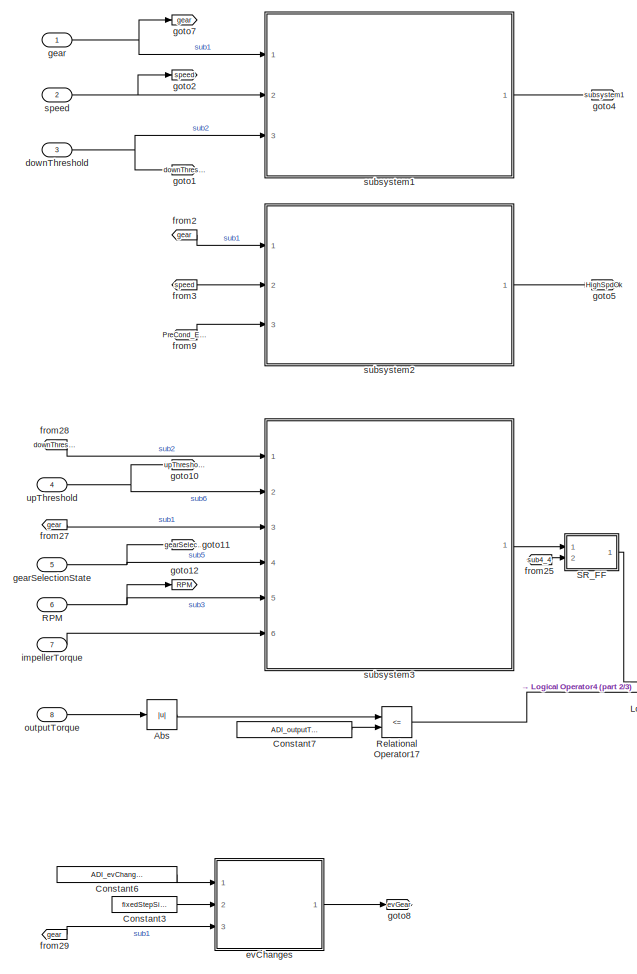
[diagram: root canvas - part 1/3, left side, full height]
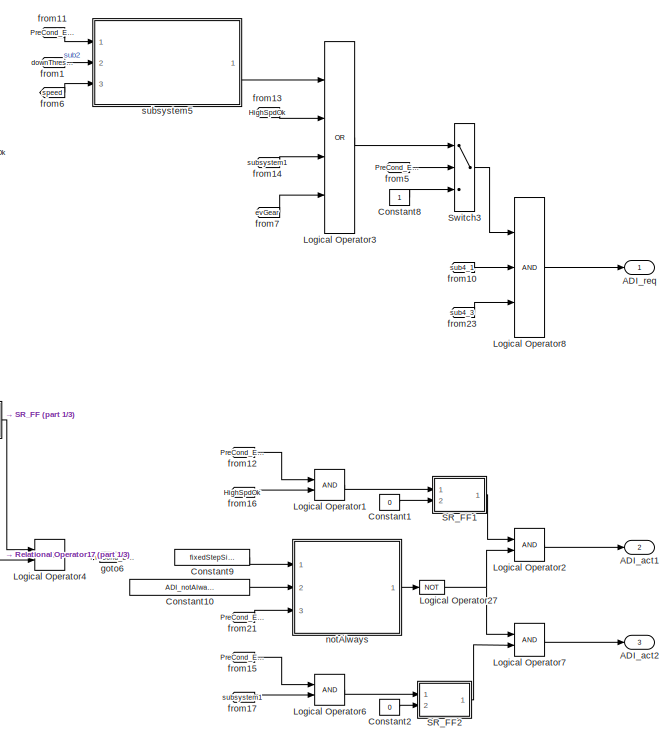
[diagram: root canvas - part 2/3, middle right region]
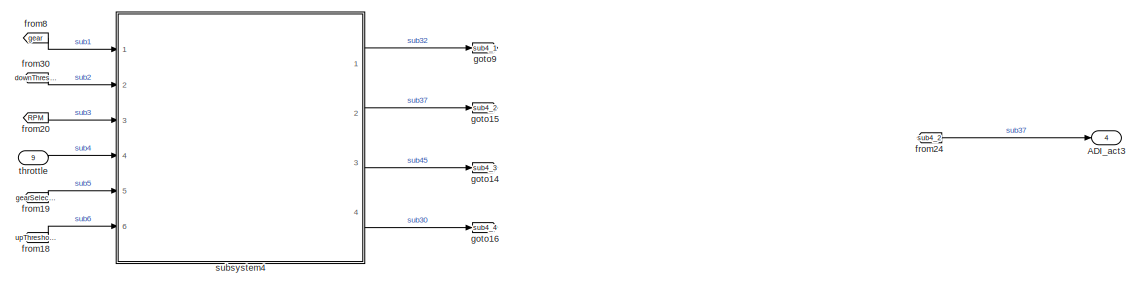
[diagram: root canvas - part 3/3, full width, bottom band]
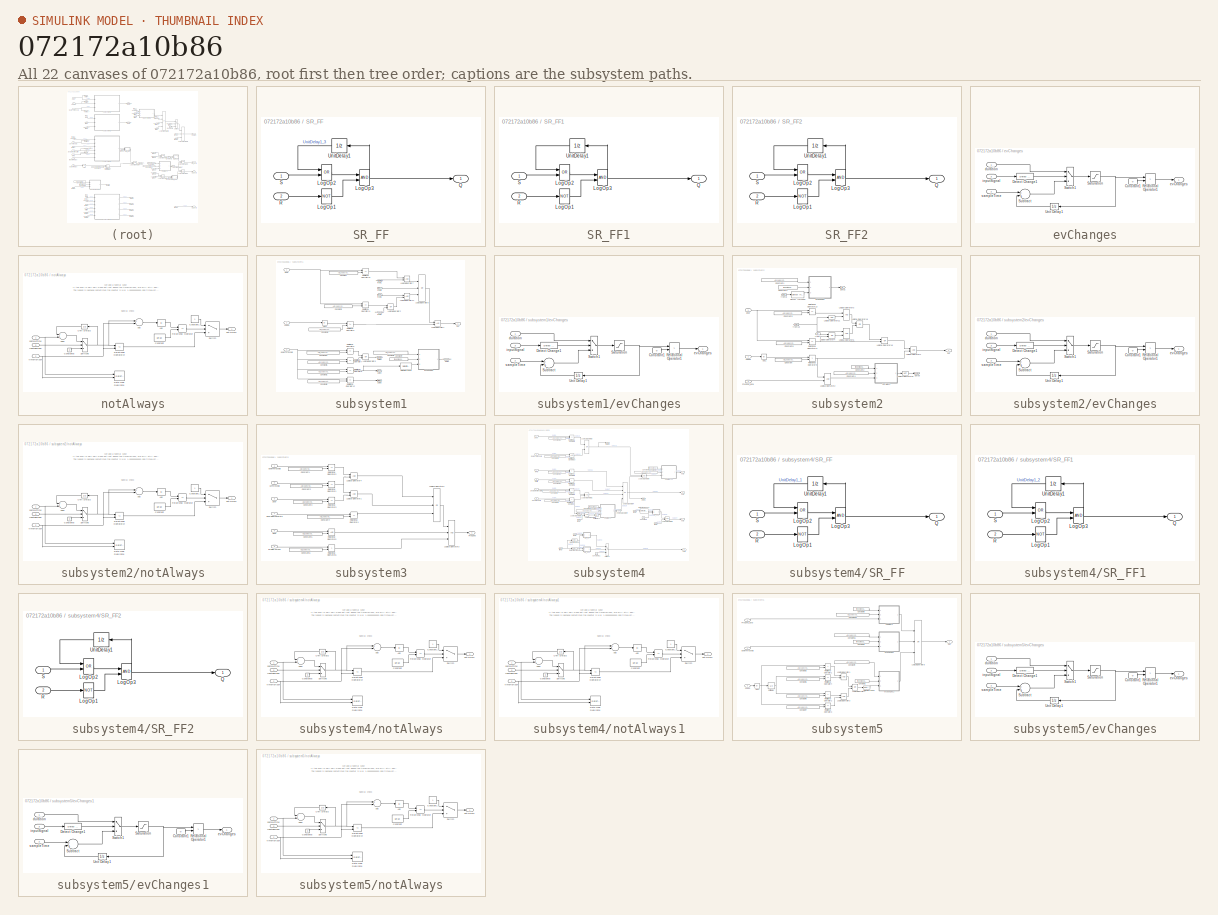
[diagram: thumbnail index - all 22 canvases of the model, root first then tree order]
MODEL slx_072172a10b86
KIND model
CONFIG AbsTol = auto
CONFIG EnableMultiTasking = off
CONFIG FixedStep = fixedStepSize
CONFIG MaxStep = auto
CONFIG MinStep = auto
CONFIG RelTol = 1e-3
CONFIG SampleTimeConstraint = Unconstrained
CONFIG Solver = FixedStepAuto
CONFIG SolverName = FixedStepAuto
CONFIG StartTime = 0.0
CONFIG StopTime = 10.0
BLOCK [Outport] ADI_act1
  IconDisplay = Port number
  OutDataTypeStr = boolean
  Port = 2
  PortDimensions = 1
  SamplingMode = Sample based
  SignalType = real
  VectorParamsAs1DForOutWhenUnconnected = off
BLOCK [Outport] ADI_act2
  IconDisplay = Port number
  OutDataTypeStr = boolean
  Port = 3
  PortDimensions = 1
  SamplingMode = Sample based
  SignalType = real
  VectorParamsAs1DForOutWhenUnconnected = off
BLOCK [Outport] ADI_act3
  IconDisplay = Port number
  OutDataTypeStr = boolean
  Port = 4
  PortDimensions = 1
  SamplingMode = Sample based
  SignalType = real
  VectorParamsAs1DForOutWhenUnconnected = off
BLOCK [Outport] ADI_req
  IconDisplay = Port number
  OutDataTypeStr = boolean
  PortDimensions = 1
  SamplingMode = Sample based
  SignalType = real
  VectorParamsAs1DForOutWhenUnconnected = off
BLOCK [Abs] Abs
  SaturateOnIntegerOverflow = off
BLOCK [Constant] Constant1
  OutDataTypeStr = boolean
  Value = 0
BLOCK [Constant] Constant10
  Value = ADI_notAlways1Horizon
BLOCK [Constant] Constant2
  OutDataTypeStr = boolean
  Value = 0
BLOCK [Constant] Constant3
  Value = fixedStepSize
BLOCK [Constant] Constant6
  Value = ADI_evChangesDuration
BLOCK [Constant] Constant7
  Value = ADI_outputTorqueBound
BLOCK [Constant] Constant8
BLOCK [Constant] Constant9
  Value = fixedStepSize
BLOCK [Logic] Logical Operator1
  AllPortsSameDT = off
  OutDataTypeStr = boolean
  Ports = [2, 1]
BLOCK [Logic] Logical Operator2
  AllPortsSameDT = off
  OutDataTypeStr = boolean
  Ports = [2, 1]
BLOCK [Logic] Logical Operator27
  AllPortsSameDT = off
  Operator = NOT
  OutDataTypeStr = boolean
  Ports = [1, 1]
BLOCK [Logic] Logical Operator3
  AllPortsSameDT = off
  Inputs = 4
  Operator = OR
  OutDataTypeStr = boolean
  Ports = [4, 1]
BLOCK [Logic] Logical Operator4
  AllPortsSameDT = off
  OutDataTypeStr = boolean
  Ports = [2, 1]
BLOCK [Logic] Logical Operator6
  AllPortsSameDT = off
  OutDataTypeStr = boolean
  Ports = [2, 1]
BLOCK [Logic] Logical Operator7
  AllPortsSameDT = off
  OutDataTypeStr = boolean
  Ports = [2, 1]
BLOCK [Logic] Logical Operator8
  AllPortsSameDT = off
  Inputs = 3
  OutDataTypeStr = boolean
  Ports = [3, 1]
BLOCK [Inport] RPM
  IconDisplay = Port number
  Port = 6
BLOCK [RelationalOperator] Relational Operator17
  InputSameDT = off
  Operator = <=
  OutDataTypeStr = boolean
  Ports = [2, 1]
BLOCK [SubSystem] SR_FF
  CopyFcn = set_param(gcbh,'LinkStatus','none');
  Ports = [2, 1]
  RequestExecContextInheritance = off
BLOCK [Logic] SR_FF/LogOp1
  Inputs = 1
  Operator = NOT
  OutDataTypeStr = boolean
  Ports = [1, 1]
  Tag = struct('inputs','1','comment',struct('text','','placement',1),'logdata',struct('maxnumvals',4096,'plotchannels',[],'loggingmode',3,'channels',1),'operator','NOT','output',struct('class','default','description','','address','','unit','-','name','$S_$B','variable','','type','Bool'),'date',733638.68643228011,'scalingvalid',0)  <repeated x6 — deduplicated; at blocks: LogOp1>
BLOCK [Logic] SR_FF/LogOp2
  Operator = OR
  OutDataTypeStr = boolean
  Ports = [2, 1]
  Tag = struct('inputs','2','comment',struct('text','','placement',1),'logdata',struct('maxnumvals',4096,'plotchannels',[],'loggingmode',3,'channels',1),'operator','AND','output',struct('class','default','description','','address','','unit','-','name','$S_$B','variable','','type','Bool'),'date',733638.68643680552,'scalingvalid',0)  <repeated x6 — deduplicated; at blocks: LogOp2>
BLOCK [Logic] SR_FF/LogOp3
  OutDataTypeStr = boolean
  Ports = [2, 1]
  Tag = struct('inputs','2','comment',struct('text','','placement',1),'logdata',struct('maxnumvals',4096,'plotchannels',[],'loggingmode',3,'channels',1),'operator','OR','output',struct('class','default','description','','address','','unit','-','name','$S_$B','variable','','type','Bool'),'date',733638.68644151615,'scalingvalid',0)  <repeated x6 — deduplicated; at blocks: LogOp3>
BLOCK [Outport] SR_FF/Q
  IconDisplay = Port number
  OutDataTypeStr = boolean
  VectorParamsAs1DForOutWhenUnconnected = off
BLOCK [Inport] SR_FF/R
  IconDisplay = Port number
  OutDataTypeStr = boolean
  Port = 2
BLOCK [Inport] SR_FF/S
  IconDisplay = Port number
  OutDataTypeStr = boolean
BLOCK [UnitDelay] SR_FF/UnitDelay1
  HasFrameUpgradeWarning = on
  SampleTime = -1
  Tag = struct('comment',struct('text','','placement',1),'logdata',struct('maxnumvals',4096,'plotchannels',[],'loggingmode',3,'channels',1),'output',struct('width',1,'name','$S_$B','unit','','type','Bool','offset',0,'max',NaN,'min',NaN,'freeze',1,'lsb',1,'arb',0,'class','default','address','','description','','autoscalingmode',1,'lowerheadroom',1,'upperheadroom',1,'headroomunit','bit','checkmin',0,'checkm...<+342ch>  <repeated x6 — deduplicated; at blocks: UnitDelay1>
BLOCK [SubSystem] SR_FF1
  CopyFcn = set_param(gcbh,'LinkStatus','none');
  Ports = [2, 1]
  RequestExecContextInheritance = off
BLOCK [Logic] SR_FF1/LogOp1
  Inputs = 1
  Operator = NOT
  OutDataTypeStr = boolean
  Ports = [1, 1]
BLOCK [Logic] SR_FF1/LogOp2
  Operator = OR
  OutDataTypeStr = boolean
  Ports = [2, 1]
BLOCK [Logic] SR_FF1/LogOp3
  OutDataTypeStr = boolean
  Ports = [2, 1]
BLOCK [Outport] SR_FF1/Q
  IconDisplay = Port number
  OutDataTypeStr = boolean
  VectorParamsAs1DForOutWhenUnconnected = off
BLOCK [Inport] SR_FF1/R
  IconDisplay = Port number
  OutDataTypeStr = boolean
  Port = 2
BLOCK [Inport] SR_FF1/S
  IconDisplay = Port number
  OutDataTypeStr = boolean
BLOCK [UnitDelay] SR_FF1/UnitDelay1
  HasFrameUpgradeWarning = on
  SampleTime = -1
BLOCK [SubSystem] SR_FF2
  CopyFcn = set_param(gcbh,'LinkStatus','none');
  Ports = [2, 1]
  RequestExecContextInheritance = off
BLOCK [Logic] SR_FF2/LogOp1
  Inputs = 1
  Operator = NOT
  OutDataTypeStr = boolean
  Ports = [1, 1]
BLOCK [Logic] SR_FF2/LogOp2
  Operator = OR
  OutDataTypeStr = boolean
  Ports = [2, 1]
BLOCK [Logic] SR_FF2/LogOp3
  OutDataTypeStr = boolean
  Ports = [2, 1]
BLOCK [Outport] SR_FF2/Q
  IconDisplay = Port number
  OutDataTypeStr = boolean
  VectorParamsAs1DForOutWhenUnconnected = off
BLOCK [Inport] SR_FF2/R
  IconDisplay = Port number
  OutDataTypeStr = boolean
  Port = 2
BLOCK [Inport] SR_FF2/S
  IconDisplay = Port number
  OutDataTypeStr = boolean
BLOCK [UnitDelay] SR_FF2/UnitDelay1
  HasFrameUpgradeWarning = on
  SampleTime = -1
BLOCK [Switch] Switch3
  Criteria = u2 ~= 0
  InputSameDT = off
  SaturateOnIntegerOverflow = off
BLOCK [Inport] downThreshold
  IconDisplay = Port number
  Port = 3
BLOCK [SubSystem] evChanges
  CopyFcn = set_param(gcbh,'LinkStatus','none');
  Ports = [3, 1]
  RequestExecContextInheritance = off
BLOCK [Constant] evChanges/Constant1
  Value = 0
BLOCK [Reference] evChanges/Detect Change1  REF=simulink/Logic and Bit
Operations/Detect
Change
  Ports = [1, 1]
  SourceBlock = simulink/Logic and Bit\nOperations/Detect\nChange
  SourceProductBaseCode = SL
  SourceProductName = Simulink
  SourceType = Detect Change
BLOCK [RelationalOperator] evChanges/Relational Operator1
  InputSameDT = off
  Operator = >
  OutDataTypeStr = boolean
  Ports = [2, 1]
BLOCK [Saturate] evChanges/Saturation
  InputPortMap = u0
  LowerLimit = 0
  Ports = [1, 1]
  UpperLimit = Inf
BLOCK [Sum] evChanges/Subtract
  InputSameDT = off
  Inputs = -+
  OutDataTypeStr = Inherit: Inherit via internal rule
  Ports = [2, 1]
  SaturateOnIntegerOverflow = off
BLOCK [Switch] evChanges/Switch1
  Criteria = u2 ~= 0
  InputSameDT = off
  SaturateOnIntegerOverflow = off
BLOCK [UnitDelay] evChanges/Unit Delay1
  HasFrameUpgradeWarning = on
  SampleTime = -1
BLOCK [Inport] evChanges/duration
  IconDisplay = Port number
BLOCK [Outport] evChanges/evChanges
  IconDisplay = Port number
  VectorParamsAs1DForOutWhenUnconnected = off
BLOCK [Inport] evChanges/inputSignal
  IconDisplay = Port number
  Port = 3
BLOCK [Inport] evChanges/sampleTime
  IconDisplay = Port number
  Port = 2
BLOCK [From] from1
  AttributesFormatString = %<GotoTag>
  GotoTag = downThreshold
BLOCK [From] from10
  AttributesFormatString = %<GotoTag>
  GotoTag = sub4_1
BLOCK [From] from11
  AttributesFormatString = %<GotoTag>
  GotoTag = PreCond_Eval
BLOCK [From] from12
  AttributesFormatString = %<GotoTag>
  GotoTag = PreCond_Eval
BLOCK [From] from13
  AttributesFormatString = %<GotoTag>
  GotoTag = HighSpdOk
BLOCK [From] from14
  AttributesFormatString = %<GotoTag>
  GotoTag = subsystem1
BLOCK [From] from15
  AttributesFormatString = %<GotoTag>
  GotoTag = PreCond_Eval
BLOCK [From] from16
  AttributesFormatString = %<GotoTag>
  GotoTag = HighSpdOk
BLOCK [From] from17
  AttributesFormatString = %<GotoTag>
  GotoTag = subsystem1
BLOCK [From] from18
  AttributesFormatString = %<GotoTag>
  GotoTag = upThreshold
BLOCK [From] from19
  AttributesFormatString = %<GotoTag>
  GotoTag = gearSelectionState
BLOCK [From] from2
  AttributesFormatString = %<GotoTag>
  GotoTag = gear
BLOCK [From] from20
  AttributesFormatString = %<GotoTag>
  GotoTag = RPM
BLOCK [From] from21
  AttributesFormatString = %<GotoTag>
  GotoTag = PreCond_Eval
BLOCK [From] from23
  AttributesFormatString = %<GotoTag>
  GotoTag = sub4_3
BLOCK [From] from24
  AttributesFormatString = %<GotoTag>
  GotoTag = sub4_2
BLOCK [From] from25
  AttributesFormatString = %<GotoTag>
  GotoTag = sub4_4
BLOCK [From] from27
  AttributesFormatString = %<GotoTag>
  GotoTag = gear
BLOCK [From] from28
  AttributesFormatString = %<GotoTag>
  GotoTag = downThreshold
BLOCK [From] from29
  AttributesFormatString = %<GotoTag>
  GotoTag = gear
BLOCK [From] from3
  AttributesFormatString = %<GotoTag>
  GotoTag = speed
BLOCK [From] from30
  AttributesFormatString = %<GotoTag>
  GotoTag = downThreshold
BLOCK [From] from5
  AttributesFormatString = %<GotoTag>
  GotoTag = PreCond_Eval
BLOCK [From] from6
  AttributesFormatString = %<GotoTag>
  GotoTag = speed
BLOCK [From] from7
  AttributesFormatString = %<GotoTag>
  GotoTag = evGear
BLOCK [From] from8
  AttributesFormatString = %<GotoTag>
  GotoTag = gear
BLOCK [From] from9
  AttributesFormatString = %<GotoTag>
  GotoTag = PreCond_Eval
BLOCK [Inport] gear
  IconDisplay = Port number
BLOCK [Inport] gearSelectionState
  IconDisplay = Port number
  Port = 5
BLOCK [Goto] goto1
  AttributesFormatString = %<GotoTag>
  GotoTag = downThreshold
BLOCK [Goto] goto10
  AttributesFormatString = %<GotoTag>
  GotoTag = upThreshold
BLOCK [Goto] goto11
  AttributesFormatString = %<GotoTag>
  GotoTag = gearSelectionState
BLOCK [Goto] goto12
  AttributesFormatString = %<GotoTag>
  GotoTag = RPM
BLOCK [Goto] goto14
  AttributesFormatString = %<GotoTag>
  GotoTag = sub4_3
BLOCK [Goto] goto15
  AttributesFormatString = %<GotoTag>
  GotoTag = sub4_2
BLOCK [Goto] goto16
  AttributesFormatString = %<GotoTag>
  GotoTag = sub4_4
BLOCK [Goto] goto2
  AttributesFormatString = %<GotoTag>
  GotoTag = speed
BLOCK [Goto] goto4
  AttributesFormatString = %<GotoTag>
  GotoTag = subsystem1
BLOCK [Goto] goto5
  AttributesFormatString = %<GotoTag>
  GotoTag = HighSpdOk
BLOCK [Goto] goto6
  AttributesFormatString = %<GotoTag>
  GotoTag = PreCond_Eval
BLOCK [Goto] goto7
  AttributesFormatString = %<GotoTag>
  GotoTag = gear
BLOCK [Goto] goto8
  AttributesFormatString = %<GotoTag>
  GotoTag = evGear
BLOCK [Goto] goto9
  AttributesFormatString = %<GotoTag>
  GotoTag = sub4_1
BLOCK [Inport] impellerTorque
  IconDisplay = Port number
  Port = 7
BLOCK [SubSystem] notAlways
  CopyFcn = set_param(gcbh,'LinkStatus','none');
  Ports = [3, 1]
  RequestExecContextInheritance = off
BLOCK [Abs] notAlways/Abs
  SaturateOnIntegerOverflow = off
BLOCK [Sum] notAlways/Add
  InputSameDT = off
  Inputs = +-
  OutDataTypeStr = Inherit: Inherit via internal rule
  Ports = [2, 1]
  SaturateOnIntegerOverflow = off
BLOCK [Sum] notAlways/Add2
  InputSameDT = off
  OutDataTypeStr = Inherit: Inherit via internal rule
  Ports = [2, 1]
  SaturateOnIntegerOverflow = off
BLOCK [Constant] notAlways/Constant
  Value = 1e-10
BLOCK [Constant] notAlways/Constant1
  OutDataTypeStr = boolean
BLOCK [Constant] notAlways/Constant8
  OutDataTypeStr = Inherit: Inherit via back propagation
  Value = 0
BLOCK [DataTypeDuplicate] notAlways/Data Type Duplicate
  Ports = [2]
BLOCK [RelationalOperator] notAlways/Relational Operator
  InputSameDT = off
  Operator = <=
  OutDataTypeStr = boolean
  Ports = [2, 1]
  RndMeth = Simplest
BLOCK [RelationalOperator] notAlways/Relational Operator14
  InputSameDT = off
  Operator = <=
  OutDataTypeStr = boolean
  Ports = [2, 1]
BLOCK [Switch] notAlways/Switch
  Criteria = u2 ~= 0
  InputSameDT = off
  SaturateOnIntegerOverflow = off
BLOCK [Switch] notAlways/Switch6
  Criteria = u2 ~= 0
  InputSameDT = off
  SaturateOnIntegerOverflow = off
BLOCK [UnitDelay] notAlways/Unit Delay2
  HasFrameUpgradeWarning = on
  SampleTime = -1
BLOCK [Inport] notAlways/inputBoolean
  IconDisplay = Port number
  Port = 3
BLOCK [Outport] notAlways/notAlways
  IconDisplay = Port number
  VectorParamsAs1DForOutWhenUnconnected = off
BLOCK [Inport] notAlways/sampleTime
  IconDisplay = Port number
BLOCK [Inport] notAlways/timeHorizon
  IconDisplay = Port number
  Port = 2
BLOCK [Inport] outputTorque
  IconDisplay = Port number
  Port = 8
BLOCK [Inport] speed
  IconDisplay = Port number
  Port = 2
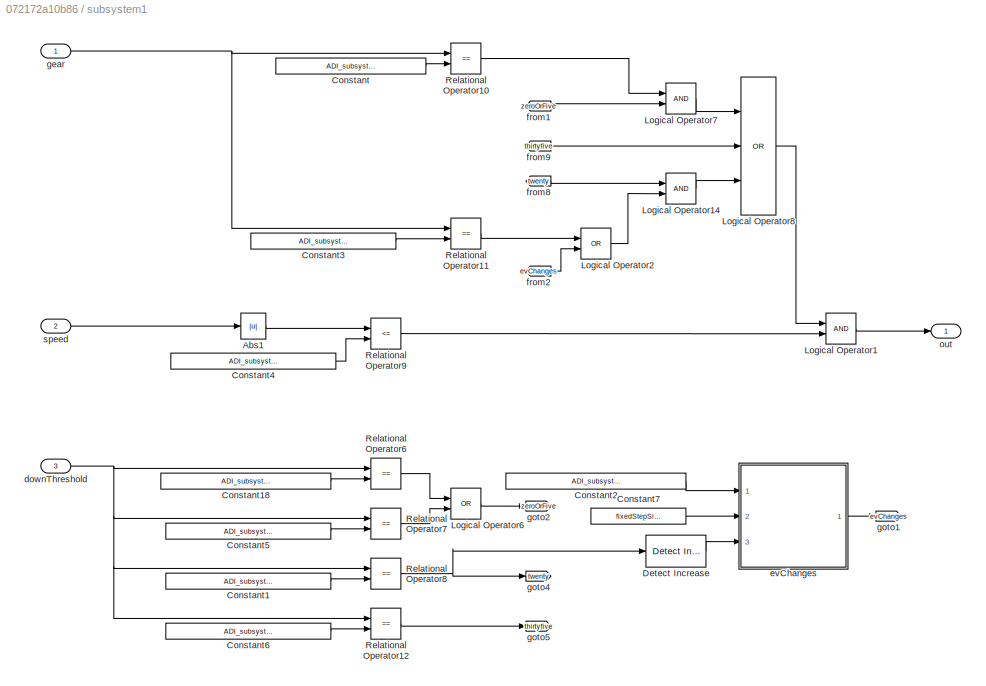
BLOCK [SubSystem] subsystem1
  Ports = [3, 1]
  RequestExecContextInheritance = off
BLOCK [Abs] subsystem1/Abs1
  SaturateOnIntegerOverflow = off
BLOCK [Constant] subsystem1/Constant
  Value = ADI_subsystem1_gearOption1
BLOCK [Constant] subsystem1/Constant1
  Value = ADI_subsystem1_downThreshold3
BLOCK [Constant] subsystem1/Constant18
  Value = ADI_subsystem1_downThreshold1
BLOCK [Constant] subsystem1/Constant2
  Value = ADI_subsystem1_evChangesDuration
BLOCK [Constant] subsystem1/Constant3
  Value = ADI_subsystem1_gearOption2
BLOCK [Constant] subsystem1/Constant4
  Value = ADI_subsystem1_speedThreshold
BLOCK [Constant] subsystem1/Constant5
  Value = ADI_subsystem1_downThreshold2
BLOCK [Constant] subsystem1/Constant6
  Value = ADI_subsystem1_downThreshold4
BLOCK [Constant] subsystem1/Constant7
  Value = fixedStepSize
BLOCK [Reference] subsystem1/Detect Increase  REF=simulink/Logic and Bit
Operations/Detect
Increase
  Ports = [1, 1]
  SourceBlock = simulink/Logic and Bit\nOperations/Detect\nIncrease
  SourceProductBaseCode = SL
  SourceProductName = Simulink
  SourceType = Detect Increase
BLOCK [Logic] subsystem1/Logical Operator1
  AllPortsSameDT = off
  OutDataTypeStr = boolean
  Ports = [2, 1]
BLOCK [Logic] subsystem1/Logical Operator14
  AllPortsSameDT = off
  OutDataTypeStr = boolean
  Ports = [2, 1]
BLOCK [Logic] subsystem1/Logical Operator2
  AllPortsSameDT = off
  Operator = OR
  OutDataTypeStr = boolean
  Ports = [2, 1]
BLOCK [Logic] subsystem1/Logical Operator6
  AllPortsSameDT = off
  Operator = OR
  OutDataTypeStr = boolean
  Ports = [2, 1]
BLOCK [Logic] subsystem1/Logical Operator7
  AllPortsSameDT = off
  OutDataTypeStr = boolean
  Ports = [2, 1]
BLOCK [Logic] subsystem1/Logical Operator8
  AllPortsSameDT = off
  Inputs = 3
  Operator = OR
  OutDataTypeStr = boolean
  Ports = [3, 1]
BLOCK [RelationalOperator] subsystem1/Relational Operator10
  InputSameDT = off
  Operator = ==
  OutDataTypeStr = boolean
  Ports = [2, 1]
BLOCK [RelationalOperator] subsystem1/Relational Operator11
  InputSameDT = off
  Operator = ==
  OutDataTypeStr = boolean
  Ports = [2, 1]
BLOCK [RelationalOperator] subsystem1/Relational Operator12
  InputSameDT = off
  Operator = ==
  OutDataTypeStr = boolean
  Ports = [2, 1]
BLOCK [RelationalOperator] subsystem1/Relational Operator6
  InputSameDT = off
  Operator = ==
  OutDataTypeStr = boolean
  Ports = [2, 1]
BLOCK [RelationalOperator] subsystem1/Relational Operator7
  InputSameDT = off
  Operator = ==
  OutDataTypeStr = boolean
  Ports = [2, 1]
BLOCK [RelationalOperator] subsystem1/Relational Operator8
  InputSameDT = off
  Operator = ==
  OutDataTypeStr = boolean
  Ports = [2, 1]
BLOCK [RelationalOperator] subsystem1/Relational Operator9
  InputSameDT = off
  Operator = <=
  OutDataTypeStr = boolean
  Ports = [2, 1]
BLOCK [Inport] subsystem1/downThreshold
  IconDisplay = Port number
  Port = 3
BLOCK [SubSystem] subsystem1/evChanges
  CopyFcn = set_param(gcbh,'LinkStatus','none');
  Ports = [3, 1]
  RequestExecContextInheritance = off
BLOCK [Constant] subsystem1/evChanges/Constant1
  Value = 0
BLOCK [Reference] subsystem1/evChanges/Detect Change1  REF=simulink/Logic and Bit
Operations/Detect
Change
  Ports = [1, 1]
  SourceBlock = simulink/Logic and Bit\nOperations/Detect\nChange
  SourceProductBaseCode = SL
  SourceProductName = Simulink
  SourceType = Detect Change
BLOCK [RelationalOperator] subsystem1/evChanges/Relational Operator1
  InputSameDT = off
  Operator = >
  OutDataTypeStr = boolean
  Ports = [2, 1]
BLOCK [Saturate] subsystem1/evChanges/Saturation
  InputPortMap = u0
  LowerLimit = 0
  Ports = [1, 1]
  UpperLimit = Inf
BLOCK [Sum] subsystem1/evChanges/Subtract
  InputSameDT = off
  Inputs = -+
  OutDataTypeStr = Inherit: Inherit via internal rule
  Ports = [2, 1]
  SaturateOnIntegerOverflow = off
BLOCK [Switch] subsystem1/evChanges/Switch1
  Criteria = u2 ~= 0
  InputSameDT = off
  SaturateOnIntegerOverflow = off
BLOCK [UnitDelay] subsystem1/evChanges/Unit Delay1
  HasFrameUpgradeWarning = on
  SampleTime = -1
BLOCK [Inport] subsystem1/evChanges/duration
  IconDisplay = Port number
BLOCK [Outport] subsystem1/evChanges/evChanges
  IconDisplay = Port number
  VectorParamsAs1DForOutWhenUnconnected = off
BLOCK [Inport] subsystem1/evChanges/inputSignal
  IconDisplay = Port number
  Port = 3
BLOCK [Inport] subsystem1/evChanges/sampleTime
  IconDisplay = Port number
  Port = 2
BLOCK [From] subsystem1/from1
  AttributesFormatString = %<GotoTag>
  GotoTag = zeroOrFive
BLOCK [From] subsystem1/from2
  AttributesFormatString = %<GotoTag>
  GotoTag = evChanges
BLOCK [From] subsystem1/from8
  AttributesFormatString = %<GotoTag>
  GotoTag = twenty
BLOCK [From] subsystem1/from9
  AttributesFormatString = %<GotoTag>
  GotoTag = thirtyfive
BLOCK [Inport] subsystem1/gear
  IconDisplay = Port number
  Interpolate = off
BLOCK [Goto] subsystem1/goto1
  AttributesFormatString = %<GotoTag>
  GotoTag = evChanges
BLOCK [Goto] subsystem1/goto2
  AttributesFormatString = %<GotoTag>
  GotoTag = zeroOrFive
BLOCK [Goto] subsystem1/goto4
  AttributesFormatString = %<GotoTag>
  GotoTag = twenty
BLOCK [Goto] subsystem1/goto5
  AttributesFormatString = %<GotoTag>
  GotoTag = thirtyfive
BLOCK [Outport] subsystem1/out
  IconDisplay = Port number
  VectorParamsAs1DForOutWhenUnconnected = off
BLOCK [Inport] subsystem1/speed 
  IconDisplay = Port number
  Port = 2
BLOCK [SubSystem] subsystem2
  Ports = [3, 1]
  RequestExecContextInheritance = off
BLOCK [Abs] subsystem2/Abs1
  SaturateOnIntegerOverflow = off
BLOCK [Constant] subsystem2/Constant
  Value = ADI_subsystem2_speedMin
BLOCK [Constant] subsystem2/Constant1
  Value = ADI_subsystem2_evChangesDuration
BLOCK [Constant] subsystem2/Constant2
  Value = fixedStepSize
BLOCK [Constant] subsystem2/Constant3
  Value = fixedStepSize
BLOCK [Constant] subsystem2/Constant4
  Value = ADI_subsystem2_notAlwaysHorizon
BLOCK [Constant] subsystem2/Constant5
  Value = ADI_subsystem2_gear1
BLOCK [Constant] subsystem2/Constant6
  Value = ADI_subsystem2_gear2
BLOCK [Reference] subsystem2/Detect Increase  REF=simulink/Logic and Bit
Operations/Detect
Increase
  Ports = [1, 1]
  SourceBlock = simulink/Logic and Bit\nOperations/Detect\nIncrease
  SourceProductBaseCode = SL
  SourceProductName = Simulink
  SourceType = Detect Increase
BLOCK [Logic] subsystem2/Logical Operator1
  AllPortsSameDT = off
  OutDataTypeStr = boolean
  Ports = [2, 1]
BLOCK [Logic] subsystem2/Logical Operator16
  AllPortsSameDT = off
  Operator = OR
  OutDataTypeStr = boolean
  Ports = [2, 1]
BLOCK [Logic] subsystem2/Logical Operator19
  AllPortsSameDT = off
  Operator = OR
  OutDataTypeStr = boolean
  Ports = [2, 1]
BLOCK [Logic] subsystem2/Logical Operator2
  AllPortsSameDT = off
  OutDataTypeStr = boolean
  Ports = [2, 1]
BLOCK [Logic] subsystem2/Logical Operator20
  AllPortsSameDT = off
  Operator = NOT
  OutDataTypeStr = boolean
  Ports = [1, 1]
BLOCK [Logic] subsystem2/Logical Operator21
  AllPortsSameDT = off
  Operator = NOT
  OutDataTypeStr = boolean
  Ports = [1, 1]
BLOCK [Logic] subsystem2/Logical Operator3
  AllPortsSameDT = off
  OutDataTypeStr = boolean
  Ports = [2, 1]
BLOCK [Logic] subsystem2/Logical Operator4
  AllPortsSameDT = off
  Operator = OR
  OutDataTypeStr = boolean
  Ports = [2, 1]
BLOCK [Logic] subsystem2/Logical Operator5
  AllPortsSameDT = off
  OutDataTypeStr = boolean
  Ports = [2, 1]
BLOCK [Inport] subsystem2/PreCond_Eval
  IconDisplay = Port number
  Port = 3
BLOCK [RelationalOperator] subsystem2/Relational Operator13
  InputSameDT = off
  Operator = ==
  OutDataTypeStr = boolean
  Ports = [2, 1]
BLOCK [RelationalOperator] subsystem2/Relational Operator14
  InputSameDT = off
  Operator = ==
  OutDataTypeStr = boolean
  Ports = [2, 1]
BLOCK [RelationalOperator] subsystem2/Relational Operator9
  InputSameDT = off
  Operator = >
  OutDataTypeStr = boolean
  Ports = [2, 1]
BLOCK [SubSystem] subsystem2/evChanges
  CopyFcn = set_param(gcbh,'LinkStatus','none');
  Ports = [3, 1]
  RequestExecContextInheritance = off
BLOCK [Constant] subsystem2/evChanges/Constant1
  Value = 0
BLOCK [Reference] subsystem2/evChanges/Detect Change1  REF=simulink/Logic and Bit
Operations/Detect
Change
  Ports = [1, 1]
  SourceBlock = simulink/Logic and Bit\nOperations/Detect\nChange
  SourceProductBaseCode = SL
  SourceProductName = Simulink
  SourceType = Detect Change
BLOCK [RelationalOperator] subsystem2/evChanges/Relational Operator1
  InputSameDT = off
  Operator = >
  OutDataTypeStr = boolean
  Ports = [2, 1]
BLOCK [Saturate] subsystem2/evChanges/Saturation
  InputPortMap = u0
  LowerLimit = 0
  Ports = [1, 1]
  UpperLimit = Inf
BLOCK [Sum] subsystem2/evChanges/Subtract
  InputSameDT = off
  Inputs = -+
  OutDataTypeStr = Inherit: Inherit via internal rule
  Ports = [2, 1]
  SaturateOnIntegerOverflow = off
BLOCK [Switch] subsystem2/evChanges/Switch1
  Criteria = u2 ~= 0
  InputSameDT = off
  SaturateOnIntegerOverflow = off
BLOCK [UnitDelay] subsystem2/evChanges/Unit Delay1
  HasFrameUpgradeWarning = on
  SampleTime = -1
BLOCK [Inport] subsystem2/evChanges/duration
  IconDisplay = Port number
BLOCK [Outport] subsystem2/evChanges/evChanges
  IconDisplay = Port number
  VectorParamsAs1DForOutWhenUnconnected = off
BLOCK [Inport] subsystem2/evChanges/inputSignal
  IconDisplay = Port number
  Port = 3
BLOCK [Inport] subsystem2/evChanges/sampleTime
  IconDisplay = Port number
  Port = 2
BLOCK [From] subsystem2/from13
  AttributesFormatString = %<GotoTag>
  GotoTag = goto1
BLOCK [From] subsystem2/from7
  AttributesFormatString = %<GotoTag>
  GotoTag = tol
BLOCK [From] subsystem2/from8
  AttributesFormatString = %<GotoTag>
  GotoTag = goto1
BLOCK [Inport] subsystem2/gear
  IconDisplay = Port number
BLOCK [Goto] subsystem2/goto2
  AttributesFormatString = %<GotoTag>
  GotoTag = tol
BLOCK [Goto] subsystem2/goto9
  AttributesFormatString = %<GotoTag>
  GotoTag = goto1
BLOCK [SubSystem] subsystem2/notAlways
  CopyFcn = set_param(gcbh,'LinkStatus','none');
  Ports = [3, 1]
  RequestExecContextInheritance = off
BLOCK [Abs] subsystem2/notAlways/Abs
  SaturateOnIntegerOverflow = off
BLOCK [Sum] subsystem2/notAlways/Add
  InputSameDT = off
  Inputs = +-
  OutDataTypeStr = Inherit: Inherit via internal rule
  Ports = [2, 1]
  SaturateOnIntegerOverflow = off
BLOCK [Sum] subsystem2/notAlways/Add2
  InputSameDT = off
  OutDataTypeStr = Inherit: Inherit via internal rule
  Ports = [2, 1]
  SaturateOnIntegerOverflow = off
BLOCK [Constant] subsystem2/notAlways/Constant
  Value = 1e-10
BLOCK [Constant] subsystem2/notAlways/Constant1
  OutDataTypeStr = boolean
BLOCK [Constant] subsystem2/notAlways/Constant8
  OutDataTypeStr = Inherit: Inherit via back propagation
  Value = 0
BLOCK [DataTypeDuplicate] subsystem2/notAlways/Data Type Duplicate
  Ports = [2]
BLOCK [RelationalOperator] subsystem2/notAlways/Relational Operator
  InputSameDT = off
  Operator = <=
  OutDataTypeStr = boolean
  Ports = [2, 1]
  RndMeth = Simplest
BLOCK [RelationalOperator] subsystem2/notAlways/Relational Operator14
  InputSameDT = off
  Operator = <=
  OutDataTypeStr = boolean
  Ports = [2, 1]
BLOCK [Switch] subsystem2/notAlways/Switch
  Criteria = u2 ~= 0
  InputSameDT = off
  SaturateOnIntegerOverflow = off
BLOCK [Switch] subsystem2/notAlways/Switch6
  Criteria = u2 ~= 0
  InputSameDT = off
  SaturateOnIntegerOverflow = off
BLOCK [UnitDelay] subsystem2/notAlways/Unit Delay2
  HasFrameUpgradeWarning = on
  SampleTime = -1
BLOCK [Inport] subsystem2/notAlways/inputBoolean
  IconDisplay = Port number
  Port = 3
BLOCK [Outport] subsystem2/notAlways/notAlways
  IconDisplay = Port number
  VectorParamsAs1DForOutWhenUnconnected = off
BLOCK [Inport] subsystem2/notAlways/sampleTime
  IconDisplay = Port number
BLOCK [Inport] subsystem2/notAlways/timeHorizon
  IconDisplay = Port number
  Port = 2
BLOCK [Outport] subsystem2/out
  IconDisplay = Port number
  VectorParamsAs1DForOutWhenUnconnected = off
BLOCK [Inport] subsystem2/speed
  IconDisplay = Port number
  Port = 2
BLOCK [SubSystem] subsystem3
  Ports = [6, 1]
  RequestExecContextInheritance = off
BLOCK [Constant] subsystem3/Constant1
  Value = ADI_subsystem3_downThreshold
BLOCK [Constant] subsystem3/Constant2
  Value = ADI_subsystem3_upThreshold
BLOCK [Constant] subsystem3/Constant3
  Value = ADI_subsystem3_gear
BLOCK [Constant] subsystem3/Constant4
  Value = ADI_subsystem3_gearSelectionState
BLOCK [Constant] subsystem3/Constant5
  Value = ADI_subsystem3_RPM
BLOCK [Constant] subsystem3/Constant6
  Value = ADI_subsystem3_impellerTorque
BLOCK [Logic] subsystem3/Logical Operator1
  AllPortsSameDT = off
  OutDataTypeStr = boolean
  Ports = [2, 1]
BLOCK [Logic] subsystem3/Logical Operator2
  AllPortsSameDT = off
  Inputs = 3
  Operator = OR
  OutDataTypeStr = boolean
  Ports = [3, 1]
BLOCK [Logic] subsystem3/Logical Operator3
  AllPortsSameDT = off
  Inputs = 3
  OutDataTypeStr = boolean
  Ports = [3, 1]
BLOCK [Logic] subsystem3/Logical Operator4
  AllPortsSameDT = off
  OutDataTypeStr = boolean
  Ports = [2, 1]
BLOCK [Outport] subsystem3/PreCond
  IconDisplay = Port number
  VectorParamsAs1DForOutWhenUnconnected = off
BLOCK [Inport] subsystem3/RPM
  IconDisplay = Port number
  Port = 5
BLOCK [RelationalOperator] subsystem3/Relational Operator1
  InputSameDT = off
  Operator = <=
  OutDataTypeStr = boolean
  Ports = [2, 1]
BLOCK [RelationalOperator] subsystem3/Relational Operator2
  InputSameDT = off
  Operator = ==
  OutDataTypeStr = boolean
  Ports = [2, 1]
BLOCK [RelationalOperator] subsystem3/Relational Operator3
  InputSameDT = off
  Operator = ==
  OutDataTypeStr = boolean
  Ports = [2, 1]
BLOCK [RelationalOperator] subsystem3/Relational Operator4
  InputSameDT = off
  Operator = ==
  OutDataTypeStr = boolean
  Ports = [2, 1]
BLOCK [RelationalOperator] subsystem3/Relational Operator5
  InputSameDT = off
  OutDataTypeStr = boolean
  Ports = [2, 1]
BLOCK [RelationalOperator] subsystem3/Relational Operator6
  InputSameDT = off
  Operator = >
  OutDataTypeStr = boolean
  Ports = [2, 1]
BLOCK [Inport] subsystem3/downThreshold
  IconDisplay = Port number
BLOCK [Inport] subsystem3/gear
  IconDisplay = Port number
  Port = 3
BLOCK [Inport] subsystem3/gearSelectionState
  IconDisplay = Port number
  Port = 4
BLOCK [Inport] subsystem3/impellerTorque
  IconDisplay = Port number
  Port = 6
BLOCK [Inport] subsystem3/upThreshold
  IconDisplay = Port number
  Port = 2
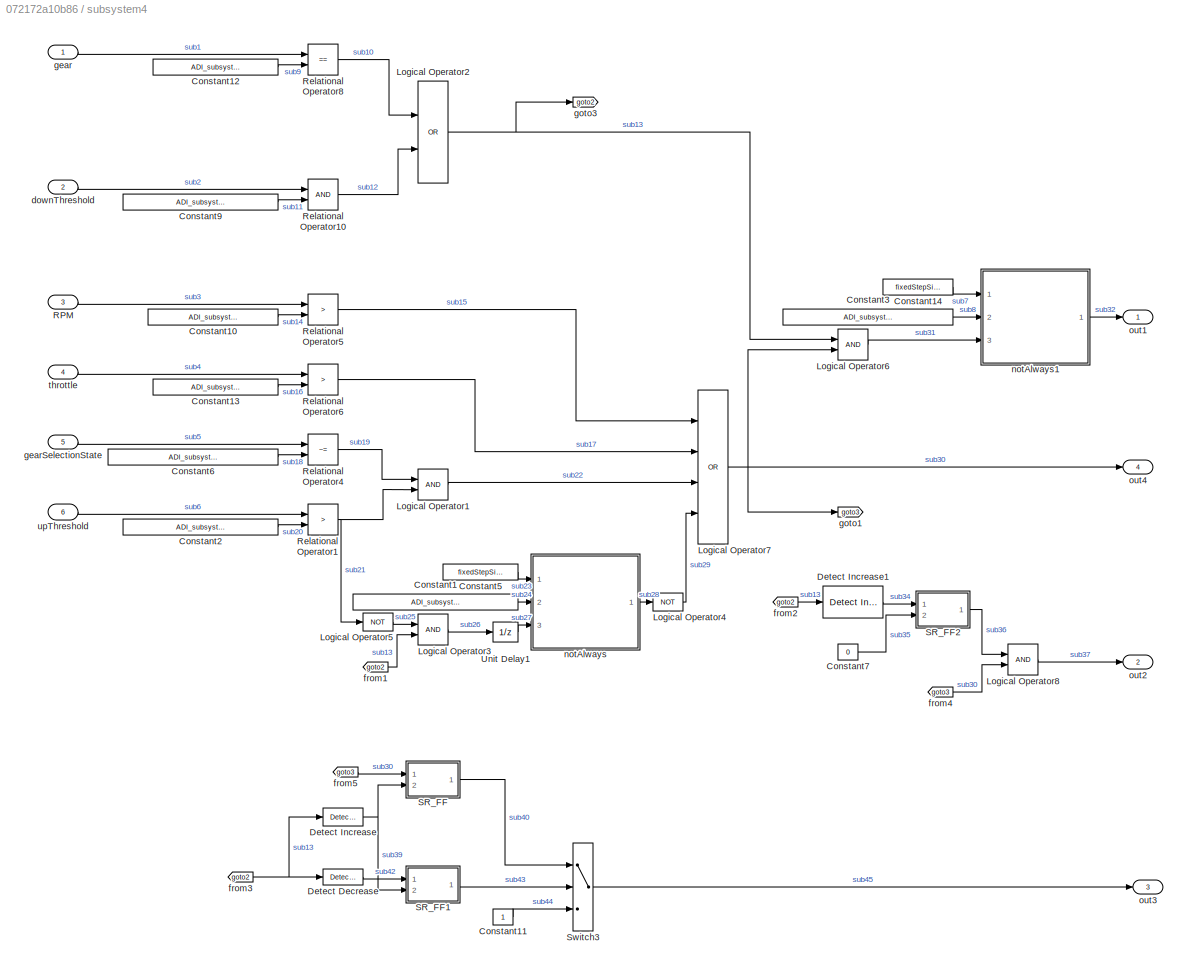
BLOCK [SubSystem] subsystem4
  Ports = [6, 4]
  RequestExecContextInheritance = off
BLOCK [Constant] subsystem4/Constant1
  Value = ADI_subsystem4_notAlwaysHorizon
BLOCK [Constant] subsystem4/Constant10
  Value = ADI_subsystem4_RPM
BLOCK [Constant] subsystem4/Constant11
BLOCK [Constant] subsystem4/Constant12
  Value = ADI_subsystem4_gear
BLOCK [Constant] subsystem4/Constant13
  Value = ADI_subsystem4_throttle
BLOCK [Constant] subsystem4/Constant14
  Value = fixedStepSize
BLOCK [Constant] subsystem4/Constant2
  Value = ADI_subsystem4_upThreshold
BLOCK [Constant] subsystem4/Constant3
  Value = ADI_subsystem4_notAlways1Horizon
BLOCK [Constant] subsystem4/Constant5
  Value = fixedStepSize
BLOCK [Constant] subsystem4/Constant6
  Value = ADI_subsystem4_gearSelectionState
BLOCK [Constant] subsystem4/Constant7
  OutDataTypeStr = boolean
  Value = 0
BLOCK [Constant] subsystem4/Constant9
  Value = ADI_subsystem4_downThreshold
BLOCK [Reference] subsystem4/Detect Decrease  REF=simulink/Logic and Bit
Operations/Detect
Decrease
  Ports = [1, 1]
  SourceBlock = simulink/Logic and Bit\nOperations/Detect\nDecrease
  SourceProductBaseCode = SL
  SourceProductName = Simulink
  SourceType = Detect Decrease
BLOCK [Reference] subsystem4/Detect Increase  REF=simulink/Logic and Bit
Operations/Detect
Increase
  Ports = [1, 1]
  SourceBlock = simulink/Logic and Bit\nOperations/Detect\nIncrease
  SourceProductBaseCode = SL
  SourceProductName = Simulink
  SourceType = Detect Increase
BLOCK [Reference] subsystem4/Detect Increase1  REF=simulink/Logic and Bit
Operations/Detect
Increase
  Ports = [1, 1]
  SourceBlock = simulink/Logic and Bit\nOperations/Detect\nIncrease
  SourceProductBaseCode = SL
  SourceProductName = Simulink
  SourceType = Detect Increase
BLOCK [Logic] subsystem4/Logical Operator1
  AllPortsSameDT = off
  OutDataTypeStr = boolean
  Ports = [2, 1]
BLOCK [Logic] subsystem4/Logical Operator2
  AllPortsSameDT = off
  Operator = OR
  OutDataTypeStr = boolean
  Ports = [2, 1]
BLOCK [Logic] subsystem4/Logical Operator3
  AllPortsSameDT = off
  OutDataTypeStr = boolean
  Ports = [2, 1]
BLOCK [Logic] subsystem4/Logical Operator4
  AllPortsSameDT = off
  Operator = NOT
  OutDataTypeStr = boolean
  Ports = [1, 1]
BLOCK [Logic] subsystem4/Logical Operator5
  AllPortsSameDT = off
  Operator = NOT
  OutDataTypeStr = boolean
  Ports = [1, 1]
BLOCK [Logic] subsystem4/Logical Operator6
  AllPortsSameDT = off
  OutDataTypeStr = boolean
  Ports = [2, 1]
BLOCK [Logic] subsystem4/Logical Operator7
  AllPortsSameDT = off
  Inputs = 4
  Operator = OR
  OutDataTypeStr = boolean
  Ports = [4, 1]
BLOCK [Logic] subsystem4/Logical Operator8
  AllPortsSameDT = off
  OutDataTypeStr = boolean
  Ports = [2, 1]
BLOCK [Inport] subsystem4/RPM
  IconDisplay = Port number
  Port = 3
BLOCK [RelationalOperator] subsystem4/Relational Operator1
  InputSameDT = off
  Operator = >
  OutDataTypeStr = boolean
  Ports = [2, 1]
BLOCK [RelationalOperator] subsystem4/Relational Operator10
  InputSameDT = off
  OutDataTypeStr = boolean
  Ports = [2, 1]
BLOCK [RelationalOperator] subsystem4/Relational Operator4
  InputSameDT = off
  Operator = ~=
  OutDataTypeStr = boolean
  Ports = [2, 1]
BLOCK [RelationalOperator] subsystem4/Relational Operator5
  InputSameDT = off
  Operator = >
  OutDataTypeStr = boolean
  Ports = [2, 1]
BLOCK [RelationalOperator] subsystem4/Relational Operator6
  InputSameDT = off
  Operator = >
  OutDataTypeStr = boolean
  Ports = [2, 1]
BLOCK [RelationalOperator] subsystem4/Relational Operator8
  InputSameDT = off
  Operator = ==
  OutDataTypeStr = boolean
  Ports = [2, 1]
BLOCK [SubSystem] subsystem4/SR_FF
  CopyFcn = set_param(gcbh,'LinkStatus','none');
  Ports = [2, 1]
  RequestExecContextInheritance = off
BLOCK [Logic] subsystem4/SR_FF/LogOp1
  Inputs = 1
  Operator = NOT
  OutDataTypeStr = boolean
  Ports = [1, 1]
BLOCK [Logic] subsystem4/SR_FF/LogOp2
  Operator = OR
  OutDataTypeStr = boolean
  Ports = [2, 1]
BLOCK [Logic] subsystem4/SR_FF/LogOp3
  OutDataTypeStr = boolean
  Ports = [2, 1]
BLOCK [Outport] subsystem4/SR_FF/Q
  IconDisplay = Port number
  OutDataTypeStr = boolean
  VectorParamsAs1DForOutWhenUnconnected = off
BLOCK [Inport] subsystem4/SR_FF/R
  IconDisplay = Port number
  OutDataTypeStr = boolean
  Port = 2
BLOCK [Inport] subsystem4/SR_FF/S
  IconDisplay = Port number
  OutDataTypeStr = boolean
BLOCK [UnitDelay] subsystem4/SR_FF/UnitDelay1
  HasFrameUpgradeWarning = on
  SampleTime = -1
BLOCK [SubSystem] subsystem4/SR_FF1
  CopyFcn = set_param(gcbh,'LinkStatus','none');
  Ports = [2, 1]
  RequestExecContextInheritance = off
BLOCK [Logic] subsystem4/SR_FF1/LogOp1
  Inputs = 1
  Operator = NOT
  OutDataTypeStr = boolean
  Ports = [1, 1]
BLOCK [Logic] subsystem4/SR_FF1/LogOp2
  Operator = OR
  OutDataTypeStr = boolean
  Ports = [2, 1]
BLOCK [Logic] subsystem4/SR_FF1/LogOp3
  OutDataTypeStr = boolean
  Ports = [2, 1]
BLOCK [Outport] subsystem4/SR_FF1/Q
  IconDisplay = Port number
  OutDataTypeStr = boolean
  VectorParamsAs1DForOutWhenUnconnected = off
BLOCK [Inport] subsystem4/SR_FF1/R
  IconDisplay = Port number
  OutDataTypeStr = boolean
  Port = 2
BLOCK [Inport] subsystem4/SR_FF1/S
  IconDisplay = Port number
  OutDataTypeStr = boolean
BLOCK [UnitDelay] subsystem4/SR_FF1/UnitDelay1
  HasFrameUpgradeWarning = on
  SampleTime = -1
BLOCK [SubSystem] subsystem4/SR_FF2
  CopyFcn = set_param(gcbh,'LinkStatus','none');
  Ports = [2, 1]
  RequestExecContextInheritance = off
BLOCK [Logic] subsystem4/SR_FF2/LogOp1
  Inputs = 1
  Operator = NOT
  OutDataTypeStr = boolean
  Ports = [1, 1]
BLOCK [Logic] subsystem4/SR_FF2/LogOp2
  Operator = OR
  OutDataTypeStr = boolean
  Ports = [2, 1]
BLOCK [Logic] subsystem4/SR_FF2/LogOp3
  OutDataTypeStr = boolean
  Ports = [2, 1]
BLOCK [Outport] subsystem4/SR_FF2/Q
  IconDisplay = Port number
  OutDataTypeStr = boolean
  VectorParamsAs1DForOutWhenUnconnected = off
BLOCK [Inport] subsystem4/SR_FF2/R
  IconDisplay = Port number
  OutDataTypeStr = boolean
  Port = 2
BLOCK [Inport] subsystem4/SR_FF2/S
  IconDisplay = Port number
  OutDataTypeStr = boolean
BLOCK [UnitDelay] subsystem4/SR_FF2/UnitDelay1
  HasFrameUpgradeWarning = on
  SampleTime = -1
BLOCK [Switch] subsystem4/Switch3
  Criteria = u2 ~= 0
  InputSameDT = off
  SaturateOnIntegerOverflow = off
BLOCK [UnitDelay] subsystem4/Unit Delay1
  HasFrameUpgradeWarning = on
  SampleTime = -1
BLOCK [Inport] subsystem4/downThreshold
  IconDisplay = Port number
  Port = 2
BLOCK [From] subsystem4/from1
  AttributesFormatString = %<GotoTag>
  GotoTag = goto2
BLOCK [From] subsystem4/from2
  AttributesFormatString = %<GotoTag>
  GotoTag = goto2
BLOCK [From] subsystem4/from3
  AttributesFormatString = %<GotoTag>
  GotoTag = goto2
BLOCK [From] subsystem4/from4
  AttributesFormatString = %<GotoTag>
  GotoTag = goto3
BLOCK [From] subsystem4/from5
  AttributesFormatString = %<GotoTag>
  GotoTag = goto3
BLOCK [Inport] subsystem4/gear
  IconDisplay = Port number
  Interpolate = off
BLOCK [Inport] subsystem4/gearSelectionState
  IconDisplay = Port number
  Port = 5
BLOCK [Goto] subsystem4/goto1
  AttributesFormatString = %<GotoTag>
  GotoTag = goto3
BLOCK [Goto] subsystem4/goto3
  AttributesFormatString = %<GotoTag>
  GotoTag = goto2
BLOCK [SubSystem] subsystem4/notAlways
  CopyFcn = set_param(gcbh,'LinkStatus','none');
  Ports = [3, 1]
  RequestExecContextInheritance = off
BLOCK [Abs] subsystem4/notAlways/Abs
  SaturateOnIntegerOverflow = off
BLOCK [Sum] subsystem4/notAlways/Add
  InputSameDT = off
  Inputs = +-
  OutDataTypeStr = Inherit: Inherit via internal rule
  Ports = [2, 1]
  SaturateOnIntegerOverflow = off
BLOCK [Sum] subsystem4/notAlways/Add2
  InputSameDT = off
  OutDataTypeStr = Inherit: Inherit via internal rule
  Ports = [2, 1]
  SaturateOnIntegerOverflow = off
BLOCK [Constant] subsystem4/notAlways/Constant
  Value = 1e-10
BLOCK [Constant] subsystem4/notAlways/Constant1
  OutDataTypeStr = boolean
BLOCK [Constant] subsystem4/notAlways/Constant8
  OutDataTypeStr = Inherit: Inherit via back propagation
  Value = 0
BLOCK [DataTypeDuplicate] subsystem4/notAlways/Data Type Duplicate
  Ports = [2]
BLOCK [RelationalOperator] subsystem4/notAlways/Relational Operator
  InputSameDT = off
  Operator = <=
  OutDataTypeStr = boolean
  Ports = [2, 1]
  RndMeth = Simplest
BLOCK [RelationalOperator] subsystem4/notAlways/Relational Operator14
  InputSameDT = off
  Operator = <=
  OutDataTypeStr = boolean
  Ports = [2, 1]
BLOCK [Switch] subsystem4/notAlways/Switch
  Criteria = u2 ~= 0
  InputSameDT = off
  SaturateOnIntegerOverflow = off
BLOCK [Switch] subsystem4/notAlways/Switch6
  Criteria = u2 ~= 0
  InputSameDT = off
  SaturateOnIntegerOverflow = off
BLOCK [UnitDelay] subsystem4/notAlways/Unit Delay2
  HasFrameUpgradeWarning = on
  SampleTime = -1
BLOCK [Inport] subsystem4/notAlways/inputBoolean
  IconDisplay = Port number
  Port = 3
BLOCK [Outport] subsystem4/notAlways/notAlways
  IconDisplay = Port number
  VectorParamsAs1DForOutWhenUnconnected = off
BLOCK [Inport] subsystem4/notAlways/sampleTime
  IconDisplay = Port number
BLOCK [Inport] subsystem4/notAlways/timeHorizon
  IconDisplay = Port number
  Port = 2
BLOCK [SubSystem] subsystem4/notAlways1
  CopyFcn = set_param(gcbh,'LinkStatus','none');
  Ports = [3, 1]
  RequestExecContextInheritance = off
BLOCK [Abs] subsystem4/notAlways1/Abs
  SaturateOnIntegerOverflow = off
BLOCK [Sum] subsystem4/notAlways1/Add
  InputSameDT = off
  Inputs = +-
  OutDataTypeStr = Inherit: Inherit via internal rule
  Ports = [2, 1]
  SaturateOnIntegerOverflow = off
BLOCK [Sum] subsystem4/notAlways1/Add2
  InputSameDT = off
  OutDataTypeStr = Inherit: Inherit via internal rule
  Ports = [2, 1]
  SaturateOnIntegerOverflow = off
BLOCK [Constant] subsystem4/notAlways1/Constant
  Value = 1e-10
BLOCK [Constant] subsystem4/notAlways1/Constant1
  OutDataTypeStr = boolean
BLOCK [Constant] subsystem4/notAlways1/Constant8
  OutDataTypeStr = Inherit: Inherit via back propagation
  Value = 0
BLOCK [DataTypeDuplicate] subsystem4/notAlways1/Data Type Duplicate
  Ports = [2]
BLOCK [RelationalOperator] subsystem4/notAlways1/Relational Operator
  InputSameDT = off
  Operator = <=
  OutDataTypeStr = boolean
  Ports = [2, 1]
  RndMeth = Simplest
BLOCK [RelationalOperator] subsystem4/notAlways1/Relational Operator14
  InputSameDT = off
  Operator = <=
  OutDataTypeStr = boolean
  Ports = [2, 1]
BLOCK [Switch] subsystem4/notAlways1/Switch
  Criteria = u2 ~= 0
  InputSameDT = off
  SaturateOnIntegerOverflow = off
BLOCK [Switch] subsystem4/notAlways1/Switch6
  Criteria = u2 ~= 0
  InputSameDT = off
  SaturateOnIntegerOverflow = off
BLOCK [UnitDelay] subsystem4/notAlways1/Unit Delay2
  HasFrameUpgradeWarning = on
  SampleTime = -1
BLOCK [Inport] subsystem4/notAlways1/inputBoolean
  IconDisplay = Port number
  Port = 3
BLOCK [Outport] subsystem4/notAlways1/notAlways
  IconDisplay = Port number
  VectorParamsAs1DForOutWhenUnconnected = off
BLOCK [Inport] subsystem4/notAlways1/sampleTime
  IconDisplay = Port number
BLOCK [Inport] subsystem4/notAlways1/timeHorizon
  IconDisplay = Port number
  Port = 2
BLOCK [Outport] subsystem4/out1
  IconDisplay = Port number
  VectorParamsAs1DForOutWhenUnconnected = off
BLOCK [Outport] subsystem4/out2
  IconDisplay = Port number
  Port = 2
  VectorParamsAs1DForOutWhenUnconnected = off
BLOCK [Outport] subsystem4/out3
  IconDisplay = Port number
  Port = 3
  VectorParamsAs1DForOutWhenUnconnected = off
BLOCK [Outport] subsystem4/out4
  IconDisplay = Port number
  Port = 4
  VectorParamsAs1DForOutWhenUnconnected = off
BLOCK [Inport] subsystem4/throttle
  IconDisplay = Port number
  Port = 4
BLOCK [Inport] subsystem4/upThreshold
  IconDisplay = Port number
  Port = 6
BLOCK [SubSystem] subsystem5
  Ports = [3, 1]
  RequestExecContextInheritance = off
BLOCK [Abs] subsystem5/Abs1
  SaturateOnIntegerOverflow = off
BLOCK [Constant] subsystem5/Constant1
  Value = fixedStepSize
BLOCK [Constant] subsystem5/Constant10
  Value = ADI_subsystem5_notAlwaysHorizon
BLOCK [Constant] subsystem5/Constant11
  Value = ADI_subsystem5_evChangesDuration
BLOCK [Constant] subsystem5/Constant2
  Value = ADI_subsystem5_speedThreshold
BLOCK [Constant] subsystem5/Constant3
  Value = fixedStepSize
BLOCK [Constant] subsystem5/Constant4
  Value = ADI_subsystem5_evChanges1Duration
BLOCK [Constant] subsystem5/Constant5
  Value = ADI_subsystem5_speedThreshold
BLOCK [Constant] subsystem5/Constant6
  Value = ADI_subsystem5_speedThreshold
BLOCK [Constant] subsystem5/Constant7
  Value = ADI_subsystem5_speedThreshold
BLOCK [Constant] subsystem5/Constant8
  Value = fixedStepSize
BLOCK [Reference] subsystem5/Detect Increase  REF=simulink/Logic and Bit
Operations/Detect
Increase
  Ports = [1, 1]
  SourceBlock = simulink/Logic and Bit\nOperations/Detect\nIncrease
  SourceProductBaseCode = SL
  SourceProductName = Simulink
  SourceType = Detect Increase
BLOCK [Logic] subsystem5/Logical Operator1
  AllPortsSameDT = off
  OutDataTypeStr = boolean
  Ports = [2, 1]
BLOCK [Logic] subsystem5/Logical Operator2
  AllPortsSameDT = off
  Operator = OR
  OutDataTypeStr = boolean
  Ports = [2, 1]
BLOCK [Logic] subsystem5/Logical Operator3
  AllPortsSameDT = off
  OutDataTypeStr = boolean
  Ports = [2, 1]
BLOCK [Logic] subsystem5/Logical Operator8
  AllPortsSameDT = off
  Inputs = 3
  Operator = OR
  OutDataTypeStr = boolean
  Ports = [3, 1]
BLOCK [Inport] subsystem5/PreCond_Eval
  IconDisplay = Port number
BLOCK [RelationalOperator] subsystem5/Relational Operator1
  InputSameDT = off
  Operator = >
  OutDataTypeStr = boolean
  Ports = [2, 1]
BLOCK [RelationalOperator] subsystem5/Relational Operator2
  InputSameDT = off
  Operator = >
  OutDataTypeStr = boolean
  Ports = [2, 1]
BLOCK [RelationalOperator] subsystem5/Relational Operator3
  InputSameDT = off
  Operator = <=
  OutDataTypeStr = boolean
  Ports = [2, 1]
BLOCK [RelationalOperator] subsystem5/Relational Operator4
  InputSameDT = off
  Operator = <=
  OutDataTypeStr = boolean
  Ports = [2, 1]
BLOCK [UnitDelay] subsystem5/Unit Delay
  HasFrameUpgradeWarning = on
  SampleTime = -1
BLOCK [Inport] subsystem5/downThreshold
  IconDisplay = Port number
  Port = 2
BLOCK [SubSystem] subsystem5/evChanges
  CopyFcn = set_param(gcbh,'LinkStatus','none');
  Ports = [3, 1]
  RequestExecContextInheritance = off
BLOCK [Constant] subsystem5/evChanges/Constant1
  Value = 0
BLOCK [Reference] subsystem5/evChanges/Detect Change1  REF=simulink/Logic and Bit
Operations/Detect
Change
  Ports = [1, 1]
  SourceBlock = simulink/Logic and Bit\nOperations/Detect\nChange
  SourceProductBaseCode = SL
  SourceProductName = Simulink
  SourceType = Detect Change
BLOCK [RelationalOperator] subsystem5/evChanges/Relational Operator1
  InputSameDT = off
  Operator = >
  OutDataTypeStr = boolean
  Ports = [2, 1]
BLOCK [Saturate] subsystem5/evChanges/Saturation
  InputPortMap = u0
  LowerLimit = 0
  Ports = [1, 1]
  UpperLimit = Inf
BLOCK [Sum] subsystem5/evChanges/Subtract
  InputSameDT = off
  Inputs = -+
  OutDataTypeStr = Inherit: Inherit via internal rule
  Ports = [2, 1]
  SaturateOnIntegerOverflow = off
BLOCK [Switch] subsystem5/evChanges/Switch1
  Criteria = u2 ~= 0
  InputSameDT = off
  SaturateOnIntegerOverflow = off
BLOCK [UnitDelay] subsystem5/evChanges/Unit Delay1
  HasFrameUpgradeWarning = on
  SampleTime = -1
BLOCK [Inport] subsystem5/evChanges/duration
  IconDisplay = Port number
BLOCK [Outport] subsystem5/evChanges/evChanges
  IconDisplay = Port number
  VectorParamsAs1DForOutWhenUnconnected = off
BLOCK [Inport] subsystem5/evChanges/inputSignal
  IconDisplay = Port number
  Port = 3
BLOCK [Inport] subsystem5/evChanges/sampleTime
  IconDisplay = Port number
  Port = 2
BLOCK [SubSystem] subsystem5/evChanges1
  CopyFcn = set_param(gcbh,'LinkStatus','none');
  Ports = [3, 1]
  RequestExecContextInheritance = off
BLOCK [Constant] subsystem5/evChanges1/Constant1
  Value = 0
BLOCK [Reference] subsystem5/evChanges1/Detect Change1  REF=simulink/Logic and Bit
Operations/Detect
Change
  Ports = [1, 1]
  SourceBlock = simulink/Logic and Bit\nOperations/Detect\nChange
  SourceProductBaseCode = SL
  SourceProductName = Simulink
  SourceType = Detect Change
BLOCK [RelationalOperator] subsystem5/evChanges1/Relational Operator1
  InputSameDT = off
  Operator = >
  OutDataTypeStr = boolean
  Ports = [2, 1]
BLOCK [Saturate] subsystem5/evChanges1/Saturation
  InputPortMap = u0
  LowerLimit = 0
  Ports = [1, 1]
  UpperLimit = Inf
BLOCK [Sum] subsystem5/evChanges1/Subtract
  InputSameDT = off
  Inputs = -+
  OutDataTypeStr = Inherit: Inherit via internal rule
  Ports = [2, 1]
  SaturateOnIntegerOverflow = off
BLOCK [Switch] subsystem5/evChanges1/Switch1
  Criteria = u2 ~= 0
  InputSameDT = off
  SaturateOnIntegerOverflow = off
BLOCK [UnitDelay] subsystem5/evChanges1/Unit Delay1
  HasFrameUpgradeWarning = on
  SampleTime = -1
BLOCK [Inport] subsystem5/evChanges1/duration
  IconDisplay = Port number
BLOCK [Outport] subsystem5/evChanges1/evChanges
  IconDisplay = Port number
  VectorParamsAs1DForOutWhenUnconnected = off
BLOCK [Inport] subsystem5/evChanges1/inputSignal
  IconDisplay = Port number
  Port = 3
BLOCK [Inport] subsystem5/evChanges1/sampleTime
  IconDisplay = Port number
  Port = 2
BLOCK [SubSystem] subsystem5/notAlways
  CopyFcn = set_param(gcbh,'LinkStatus','none');
  Ports = [3, 1]
  RequestExecContextInheritance = off
BLOCK [Abs] subsystem5/notAlways/Abs
  SaturateOnIntegerOverflow = off
BLOCK [Sum] subsystem5/notAlways/Add
  InputSameDT = off
  Inputs = +-
  OutDataTypeStr = Inherit: Inherit via internal rule
  Ports = [2, 1]
  SaturateOnIntegerOverflow = off
BLOCK [Sum] subsystem5/notAlways/Add2
  InputSameDT = off
  OutDataTypeStr = Inherit: Inherit via internal rule
  Ports = [2, 1]
  SaturateOnIntegerOverflow = off
BLOCK [Constant] subsystem5/notAlways/Constant
  Value = 1e-10
BLOCK [Constant] subsystem5/notAlways/Constant1
  OutDataTypeStr = boolean
BLOCK [Constant] subsystem5/notAlways/Constant8
  OutDataTypeStr = Inherit: Inherit via back propagation
  Value = 0
BLOCK [DataTypeDuplicate] subsystem5/notAlways/Data Type Duplicate
  Ports = [2]
BLOCK [RelationalOperator] subsystem5/notAlways/Relational Operator
  InputSameDT = off
  Operator = <=
  OutDataTypeStr = boolean
  Ports = [2, 1]
  RndMeth = Simplest
BLOCK [RelationalOperator] subsystem5/notAlways/Relational Operator14
  InputSameDT = off
  Operator = <=
  OutDataTypeStr = boolean
  Ports = [2, 1]
BLOCK [Switch] subsystem5/notAlways/Switch
  Criteria = u2 ~= 0
  InputSameDT = off
  SaturateOnIntegerOverflow = off
BLOCK [Switch] subsystem5/notAlways/Switch6
  Criteria = u2 ~= 0
  InputSameDT = off
  SaturateOnIntegerOverflow = off
BLOCK [UnitDelay] subsystem5/notAlways/Unit Delay2
  HasFrameUpgradeWarning = on
  SampleTime = -1
BLOCK [Inport] subsystem5/notAlways/inputBoolean
  IconDisplay = Port number
  Port = 3
BLOCK [Outport] subsystem5/notAlways/notAlways
  IconDisplay = Port number
  VectorParamsAs1DForOutWhenUnconnected = off
BLOCK [Inport] subsystem5/notAlways/sampleTime
  IconDisplay = Port number
BLOCK [Inport] subsystem5/notAlways/timeHorizon
  IconDisplay = Port number
  Port = 2
BLOCK [Outport] subsystem5/out
  IconDisplay = Port number
  VectorParamsAs1DForOutWhenUnconnected = off
BLOCK [Inport] subsystem5/speed
  IconDisplay = Port number
  Port = 3
BLOCK [Inport] throttle
  IconDisplay = Port number
  Port = 9
BLOCK [Inport] upThreshold
  IconDisplay = Port number
  Port = 4
ANNOTATION notAlways: We add a special case: If the sum is very very close but just above the timeHorizon, we will still send TRUE as output! The reason is because sometimes the counter is e.g. 1.000000000001 and timeHorizon is 1, which is essentially just a floating point error.
ANNOTATION notAlways: Special check
ANNOTATION subsystem2/notAlways: We add a special case: If the sum is very very close but just above the timeHorizon, we will still send TRUE as output! The reason is because sometimes the counter is e.g. 1.000000000001 and timeHorizon is 1, which is essentially just a floating point error.
ANNOTATION subsystem2/notAlways: Special check
ANNOTATION subsystem4/notAlways: We add a special case: If the sum is very very close but just above the timeHorizon, we will still send TRUE as output! The reason is because sometimes the counter is e.g. 1.000000000001 and timeHorizon is 1, which is essentially just a floating point error.
ANNOTATION subsystem4/notAlways: Special check
ANNOTATION subsystem4/notAlways1: We add a special case: If the sum is very very close but just above the timeHorizon, we will still send TRUE as output! The reason is because sometimes the counter is e.g. 1.000000000001 and timeHorizon is 1, which is essentially just a floating point error.
ANNOTATION subsystem4/notAlways1: Special check
ANNOTATION subsystem5/notAlways: We add a special case: If the sum is very very close but just above the timeHorizon, we will still send TRUE as output! The reason is because sometimes the counter is e.g. 1.000000000001 and timeHorizon is 1, which is essentially just a floating point error.
ANNOTATION subsystem5/notAlways: Special check
LINE Abs:1 -> Relational Operator17:1
LINE Constant10:1 -> notAlways:2
LINE Constant1:1 -> SR_FF1:2
LINE Constant2:1 -> SR_FF2:2
LINE Constant3:1 -> evChanges:2
LINE Constant6:1 -> evChanges:1
LINE Constant7:1 -> Relational Operator17:2
LINE Constant8:1 -> Switch3:3
LINE Constant9:1 -> notAlways:1
LINE Logical Operator1:1 -> SR_FF1:1
NET Logical Operator27:1 -> Logical Operator2:2, Logical Operator7:1
LINE Logical Operator2:1 -> ADI_act1:1
LINE Logical Operator3:1 -> Switch3:1
LINE Logical Operator4:1 -> goto6:1
LINE Logical Operator6:1 -> SR_FF2:1
LINE Logical Operator7:1 -> ADI_act2:1
LINE Logical Operator8:1 -> ADI_req:1
NET RPM:1 -> goto12:1, subsystem3:5
LINE Relational Operator17:1 -> Logical Operator4:2
LINE SR_FF/LogOp1:1 -> SR_FF/LogOp3:2
LINE SR_FF/LogOp2:1 -> SR_FF/LogOp3:1
NET SR_FF/LogOp3:1 -> SR_FF/Q:1, SR_FF/UnitDelay1:1
LINE SR_FF/R:1 -> SR_FF/LogOp1:1
LINE SR_FF/S:1 -> SR_FF/LogOp2:2
LINE SR_FF/UnitDelay1:1 -> SR_FF/LogOp2:1
LINE SR_FF1/LogOp1:1 -> SR_FF1/LogOp3:2
LINE SR_FF1/LogOp2:1 -> SR_FF1/LogOp3:1
NET SR_FF1/LogOp3:1 -> SR_FF1/Q:1, SR_FF1/UnitDelay1:1
LINE SR_FF1/R:1 -> SR_FF1/LogOp1:1
LINE SR_FF1/S:1 -> SR_FF1/LogOp2:2
LINE SR_FF1/UnitDelay1:1 -> SR_FF1/LogOp2:1
LINE SR_FF1:1 -> Logical Operator2:1
LINE SR_FF2/LogOp1:1 -> SR_FF2/LogOp3:2
LINE SR_FF2/LogOp2:1 -> SR_FF2/LogOp3:1
NET SR_FF2/LogOp3:1 -> SR_FF2/Q:1, SR_FF2/UnitDelay1:1
LINE SR_FF2/R:1 -> SR_FF2/LogOp1:1
LINE SR_FF2/S:1 -> SR_FF2/LogOp2:2
LINE SR_FF2/UnitDelay1:1 -> SR_FF2/LogOp2:1
LINE SR_FF2:1 -> Logical Operator7:2
LINE SR_FF:1 -> Logical Operator4:1
LINE Switch3:1 -> Logical Operator8:1
NET downThreshold:1 -> goto1:1, subsystem1:3
LINE evChanges/Constant1:1 -> evChanges/Relational Operator1:2
LINE evChanges/Detect Change1:1 -> evChanges/Switch1:2
LINE evChanges/Relational Operator1:1 -> evChanges/evChanges:1
NET evChanges/Saturation:1 -> evChanges/Relational Operator1:1, evChanges/Unit Delay1:1
LINE evChanges/Subtract:1 -> evChanges/Switch1:3
LINE evChanges/Switch1:1 -> evChanges/Saturation:1
LINE evChanges/Unit Delay1:1 -> evChanges/Subtract:2
LINE evChanges/duration:1 -> evChanges/Switch1:1
LINE evChanges/inputSignal:1 -> evChanges/Detect Change1:1
LINE evChanges/sampleTime:1 -> evChanges/Subtract:1
LINE evChanges:1 -> goto8:1
LINE from10:1 -> Logical Operator8:2
LINE from11:1 -> subsystem5:1
LINE from12:1 -> Logical Operator1:1
LINE from13:1 -> Logical Operator3:2
LINE from14:1 -> Logical Operator3:3
LINE from15:1 -> Logical Operator6:1
LINE from16:1 -> Logical Operator1:2
LINE from17:1 -> Logical Operator6:2
LINE from18:1 -> subsystem4:6
LINE from19:1 -> subsystem4:5
LINE from1:1 -> subsystem5:2
LINE from20:1 -> subsystem4:3
LINE from21:1 -> notAlways:3
LINE from23:1 -> Logical Operator8:3
LINE from24:1 -> ADI_act3:1
LINE from25:1 -> SR_FF:2
LINE from27:1 -> subsystem3:3
LINE from28:1 -> subsystem3:1
LINE from29:1 -> evChanges:3
LINE from2:1 -> subsystem2:1
LINE from30:1 -> subsystem4:2
LINE from3:1 -> subsystem2:2
LINE from5:1 -> Switch3:2
LINE from6:1 -> subsystem5:3
LINE from7:1 -> Logical Operator3:4
LINE from8:1 -> subsystem4:1
LINE from9:1 -> subsystem2:3
NET gear:1 -> goto7:1, subsystem1:1
NET gearSelectionState:1 -> goto11:1, subsystem3:4
LINE impellerTorque:1 -> subsystem3:6
LINE notAlways/Abs:1 -> notAlways/Relational Operator:1
LINE notAlways/Add2:1 -> notAlways/Switch6:1
LINE notAlways/Add:1 -> notAlways/Abs:1
LINE notAlways/Constant1:1 -> notAlways/Switch:1
LINE notAlways/Constant8:1 -> notAlways/Switch6:3
LINE notAlways/Constant:1 -> notAlways/Relational Operator:2
LINE notAlways/Relational Operator14:1 -> notAlways/Switch:3
LINE notAlways/Relational Operator:1 -> notAlways/Switch:2
NET notAlways/Switch6:1 -> notAlways/Add:1, notAlways/Relational Operator14:1, notAlways/Unit Delay2:1
LINE notAlways/Switch:1 -> notAlways/notAlways:1
LINE notAlways/Unit Delay2:1 -> notAlways/Add2:1
LINE notAlways/inputBoolean:1 -> notAlways/Switch6:2
NET notAlways/sampleTime:1 -> notAlways/Add2:2, notAlways/Data Type Duplicate:1
NET notAlways/timeHorizon:1 -> notAlways/Add:2, notAlways/Data Type Duplicate:2, notAlways/Relational Operator14:2
LINE notAlways:1 -> Logical Operator27:1
LINE outputTorque:1 -> Abs:1
NET speed:1 -> goto2:1, subsystem1:2
LINE subsystem1/Abs1:1 -> subsystem1/Relational Operator9:1
LINE subsystem1/Constant18:1 -> subsystem1/Relational Operator6:2
LINE subsystem1/Constant1:1 -> subsystem1/Relational Operator8:2
LINE subsystem1/Constant2:1 -> subsystem1/evChanges:1
LINE subsystem1/Constant3:1 -> subsystem1/Relational Operator11:2
LINE subsystem1/Constant4:1 -> subsystem1/Relational Operator9:2
LINE subsystem1/Constant5:1 -> subsystem1/Relational Operator7:2
LINE subsystem1/Constant6:1 -> subsystem1/Relational Operator12:2
LINE subsystem1/Constant7:1 -> subsystem1/evChanges:2
LINE subsystem1/Constant:1 -> subsystem1/Relational Operator10:2
LINE subsystem1/Detect Increase:1 -> subsystem1/evChanges:3
LINE subsystem1/Logical Operator14:1 -> subsystem1/Logical Operator8:3
LINE subsystem1/Logical Operator1:1 -> subsystem1/out:1
LINE subsystem1/Logical Operator2:1 -> subsystem1/Logical Operator14:2
LINE subsystem1/Logical Operator6:1 -> subsystem1/goto2:1
LINE subsystem1/Logical Operator7:1 -> subsystem1/Logical Operator8:1
LINE subsystem1/Logical Operator8:1 -> subsystem1/Logical Operator1:1
LINE subsystem1/Relational Operator10:1 -> subsystem1/Logical Operator7:1
LINE subsystem1/Relational Operator11:1 -> subsystem1/Logical Operator2:1
LINE subsystem1/Relational Operator12:1 -> subsystem1/goto5:1
LINE subsystem1/Relational Operator6:1 -> subsystem1/Logical Operator6:1
LINE subsystem1/Relational Operator7:1 -> subsystem1/Logical Operator6:2
NET subsystem1/Relational Operator8:1 -> subsystem1/Detect Increase:1, subsystem1/goto4:1
LINE subsystem1/Relational Operator9:1 -> subsystem1/Logical Operator1:2
NET subsystem1/downThreshold:1 -> subsystem1/Relational Operator12:1, subsystem1/Relational Operator6:1, subsystem1/Relational Operator7:1, subsystem1/Relational Operator8:1
LINE subsystem1/evChanges/Constant1:1 -> subsystem1/evChanges/Relational Operator1:2
LINE subsystem1/evChanges/Detect Change1:1 -> subsystem1/evChanges/Switch1:2
LINE subsystem1/evChanges/Relational Operator1:1 -> subsystem1/evChanges/evChanges:1
NET subsystem1/evChanges/Saturation:1 -> subsystem1/evChanges/Relational Operator1:1, subsystem1/evChanges/Unit Delay1:1
LINE subsystem1/evChanges/Subtract:1 -> subsystem1/evChanges/Switch1:3
LINE subsystem1/evChanges/Switch1:1 -> subsystem1/evChanges/Saturation:1
LINE subsystem1/evChanges/Unit Delay1:1 -> subsystem1/evChanges/Subtract:2
LINE subsystem1/evChanges/duration:1 -> subsystem1/evChanges/Switch1:1
LINE subsystem1/evChanges/inputSignal:1 -> subsystem1/evChanges/Detect Change1:1
LINE subsystem1/evChanges/sampleTime:1 -> subsystem1/evChanges/Subtract:1
LINE subsystem1/evChanges:1 -> subsystem1/goto1:1
LINE subsystem1/from1:1 -> subsystem1/Logical Operator7:2
LINE subsystem1/from2:1 -> subsystem1/Logical Operator2:2
LINE subsystem1/from8:1 -> subsystem1/Logical Operator14:1
LINE subsystem1/from9:1 -> subsystem1/Logical Operator8:2
NET subsystem1/gear:1 -> subsystem1/Relational Operator10:1, subsystem1/Relational Operator11:1
LINE subsystem1/speed :1 -> subsystem1/Abs1:1
LINE subsystem1:1 -> goto4:1
LINE subsystem2/Abs1:1 -> subsystem2/Relational Operator9:1
LINE subsystem2/Constant1:1 -> subsystem2/evChanges:1
LINE subsystem2/Constant2:1 -> subsystem2/notAlways:1
LINE subsystem2/Constant3:1 -> subsystem2/evChanges:2
LINE subsystem2/Constant4:1 -> subsystem2/notAlways:2
LINE subsystem2/Constant5:1 -> subsystem2/Relational Operator13:2
LINE subsystem2/Constant6:1 -> subsystem2/Relational Operator14:2
LINE subsystem2/Constant:1 -> subsystem2/Relational Operator9:2
LINE subsystem2/Detect Increase:1 -> subsystem2/evChanges:3
LINE subsystem2/Logical Operator16:1 -> subsystem2/Logical Operator1:1
LINE subsystem2/Logical Operator19:1 -> subsystem2/Logical Operator16:1
LINE subsystem2/Logical Operator1:1 -> subsystem2/out:1
LINE subsystem2/Logical Operator20:1 -> subsystem2/goto9:1
LINE subsystem2/Logical Operator21:1 -> subsystem2/Logical Operator3:2
LINE subsystem2/Logical Operator2:1 -> subsystem2/notAlways:3
LINE subsystem2/Logical Operator3:1 -> subsystem2/Logical Operator19:1
LINE subsystem2/Logical Operator4:1 -> subsystem2/Logical Operator5:2
LINE subsystem2/Logical Operator5:1 -> subsystem2/Logical Operator19:2
LINE subsystem2/PreCond_Eval:1 -> subsystem2/Logical Operator2:2
LINE subsystem2/Relational Operator13:1 -> subsystem2/Logical Operator3:1
NET subsystem2/Relational Operator14:1 -> subsystem2/Logical Operator16:2, subsystem2/Logical Operator4:2
NET subsystem2/Relational Operator9:1 -> subsystem2/Logical Operator1:2, subsystem2/Logical Operator2:1
LINE subsystem2/evChanges/Constant1:1 -> subsystem2/evChanges/Relational Operator1:2
LINE subsystem2/evChanges/Detect Change1:1 -> subsystem2/evChanges/Switch1:2
LINE subsystem2/evChanges/Relational Operator1:1 -> subsystem2/evChanges/evChanges:1
NET subsystem2/evChanges/Saturation:1 -> subsystem2/evChanges/Relational Operator1:1, subsystem2/evChanges/Unit Delay1:1
LINE subsystem2/evChanges/Subtract:1 -> subsystem2/evChanges/Switch1:3
LINE subsystem2/evChanges/Switch1:1 -> subsystem2/evChanges/Saturation:1
LINE subsystem2/evChanges/Unit Delay1:1 -> subsystem2/evChanges/Subtract:2
LINE subsystem2/evChanges/duration:1 -> subsystem2/evChanges/Switch1:1
LINE subsystem2/evChanges/inputSignal:1 -> subsystem2/evChanges/Detect Change1:1
LINE subsystem2/evChanges/sampleTime:1 -> subsystem2/evChanges/Subtract:1
LINE subsystem2/evChanges:1 -> subsystem2/goto2:1
NET subsystem2/from13:1 -> subsystem2/Logical Operator21:1, subsystem2/Logical Operator5:1
LINE subsystem2/from7:1 -> subsystem2/Logical Operator4:1
LINE subsystem2/from8:1 -> subsystem2/Detect Increase:1
NET subsystem2/gear:1 -> subsystem2/Relational Operator13:1, subsystem2/Relational Operator14:1
LINE subsystem2/notAlways/Abs:1 -> subsystem2/notAlways/Relational Operator:1
LINE subsystem2/notAlways/Add2:1 -> subsystem2/notAlways/Switch6:1
LINE subsystem2/notAlways/Add:1 -> subsystem2/notAlways/Abs:1
LINE subsystem2/notAlways/Constant1:1 -> subsystem2/notAlways/Switch:1
LINE subsystem2/notAlways/Constant8:1 -> subsystem2/notAlways/Switch6:3
LINE subsystem2/notAlways/Constant:1 -> subsystem2/notAlways/Relational Operator:2
LINE subsystem2/notAlways/Relational Operator14:1 -> subsystem2/notAlways/Switch:3
LINE subsystem2/notAlways/Relational Operator:1 -> subsystem2/notAlways/Switch:2
NET subsystem2/notAlways/Switch6:1 -> subsystem2/notAlways/Add:1, subsystem2/notAlways/Relational Operator14:1, subsystem2/notAlways/Unit Delay2:1
LINE subsystem2/notAlways/Switch:1 -> subsystem2/notAlways/notAlways:1
LINE subsystem2/notAlways/Unit Delay2:1 -> subsystem2/notAlways/Add2:1
LINE subsystem2/notAlways/inputBoolean:1 -> subsystem2/notAlways/Switch6:2
NET subsystem2/notAlways/sampleTime:1 -> subsystem2/notAlways/Add2:2, subsystem2/notAlways/Data Type Duplicate:1
NET subsystem2/notAlways/timeHorizon:1 -> subsystem2/notAlways/Add:2, subsystem2/notAlways/Data Type Duplicate:2, subsystem2/notAlways/Relational Operator14:2
LINE subsystem2/notAlways:1 -> subsystem2/Logical Operator20:1
LINE subsystem2/speed:1 -> subsystem2/Abs1:1
LINE subsystem2:1 -> goto5:1
LINE subsystem3/Constant1:1 -> subsystem3/Relational Operator2:2
LINE subsystem3/Constant2:1 -> subsystem3/Relational Operator1:2
LINE subsystem3/Constant3:1 -> subsystem3/Relational Operator3:2
LINE subsystem3/Constant4:1 -> subsystem3/Relational Operator4:2
LINE subsystem3/Constant5:1 -> subsystem3/Relational Operator5:2
LINE subsystem3/Constant6:1 -> subsystem3/Relational Operator6:2
LINE subsystem3/Logical Operator1:1 -> subsystem3/Logical Operator2:2
LINE subsystem3/Logical Operator2:1 -> subsystem3/Logical Operator3:1
LINE subsystem3/Logical Operator3:1 -> subsystem3/PreCond:1
LINE subsystem3/Logical Operator4:1 -> subsystem3/Logical Operator2:1
LINE subsystem3/RPM:1 -> subsystem3/Relational Operator5:1
NET subsystem3/Relational Operator1:1 -> subsystem3/Logical Operator1:1, subsystem3/Logical Operator4:2
LINE subsystem3/Relational Operator2:1 -> subsystem3/Logical Operator4:1
LINE subsystem3/Relational Operator3:1 -> subsystem3/Logical Operator1:2
LINE subsystem3/Relational Operator4:1 -> subsystem3/Logical Operator2:3
LINE subsystem3/Relational Operator5:1 -> subsystem3/Logical Operator3:2
LINE subsystem3/Relational Operator6:1 -> subsystem3/Logical Operator3:3
LINE subsystem3/downThreshold:1 -> subsystem3/Relational Operator2:1
LINE subsystem3/gear:1 -> subsystem3/Relational Operator3:1
LINE subsystem3/gearSelectionState:1 -> subsystem3/Relational Operator4:1
LINE subsystem3/impellerTorque:1 -> subsystem3/Relational Operator6:1
LINE subsystem3/upThreshold:1 -> subsystem3/Relational Operator1:1
LINE subsystem3:1 -> SR_FF:1
LINE subsystem4/Constant10:1 -> subsystem4/Relational Operator5:2
LINE subsystem4/Constant11:1 -> subsystem4/Switch3:3
LINE subsystem4/Constant12:1 -> subsystem4/Relational Operator8:2
LINE subsystem4/Constant13:1 -> subsystem4/Relational Operator6:2
LINE subsystem4/Constant14:1 -> subsystem4/notAlways1:1
LINE subsystem4/Constant1:1 -> subsystem4/notAlways:2
LINE subsystem4/Constant2:1 -> subsystem4/Relational Operator1:2
LINE subsystem4/Constant3:1 -> subsystem4/notAlways1:2
LINE subsystem4/Constant5:1 -> subsystem4/notAlways:1
LINE subsystem4/Constant6:1 -> subsystem4/Relational Operator4:2
LINE subsystem4/Constant7:1 -> subsystem4/SR_FF2:2
LINE subsystem4/Constant9:1 -> subsystem4/Relational Operator10:2
LINE subsystem4/Detect Decrease:1 -> subsystem4/SR_FF1:1
LINE subsystem4/Detect Increase1:1 -> subsystem4/SR_FF2:1
NET subsystem4/Detect Increase:1 -> subsystem4/SR_FF1:2, subsystem4/SR_FF:2
LINE subsystem4/Logical Operator1:1 -> subsystem4/Logical Operator7:3
NET subsystem4/Logical Operator2:1 -> subsystem4/Logical Operator6:1, subsystem4/goto3:1
LINE subsystem4/Logical Operator3:1 -> subsystem4/Unit Delay1:1
LINE subsystem4/Logical Operator4:1 -> subsystem4/Logical Operator7:4
LINE subsystem4/Logical Operator5:1 -> subsystem4/Logical Operator3:1
LINE subsystem4/Logical Operator6:1 -> subsystem4/notAlways1:3
NET subsystem4/Logical Operator7:1 -> subsystem4/Logical Operator6:2, subsystem4/goto1:1, subsystem4/out4:1
LINE subsystem4/Logical Operator8:1 -> subsystem4/out2:1
LINE subsystem4/RPM:1 -> subsystem4/Relational Operator5:1
LINE subsystem4/Relational Operator10:1 -> subsystem4/Logical Operator2:2
NET subsystem4/Relational Operator1:1 -> subsystem4/Logical Operator1:2, subsystem4/Logical Operator5:1
LINE subsystem4/Relational Operator4:1 -> subsystem4/Logical Operator1:1
LINE subsystem4/Relational Operator5:1 -> subsystem4/Logical Operator7:1
LINE subsystem4/Relational Operator6:1 -> subsystem4/Logical Operator7:2
LINE subsystem4/Relational Operator8:1 -> subsystem4/Logical Operator2:1
LINE subsystem4/SR_FF/LogOp1:1 -> subsystem4/SR_FF/LogOp3:2
LINE subsystem4/SR_FF/LogOp2:1 -> subsystem4/SR_FF/LogOp3:1
NET subsystem4/SR_FF/LogOp3:1 -> subsystem4/SR_FF/Q:1, subsystem4/SR_FF/UnitDelay1:1
LINE subsystem4/SR_FF/R:1 -> subsystem4/SR_FF/LogOp1:1
LINE subsystem4/SR_FF/S:1 -> subsystem4/SR_FF/LogOp2:2
LINE subsystem4/SR_FF/UnitDelay1:1 -> subsystem4/SR_FF/LogOp2:1
LINE subsystem4/SR_FF1/LogOp1:1 -> subsystem4/SR_FF1/LogOp3:2
LINE subsystem4/SR_FF1/LogOp2:1 -> subsystem4/SR_FF1/LogOp3:1
NET subsystem4/SR_FF1/LogOp3:1 -> subsystem4/SR_FF1/Q:1, subsystem4/SR_FF1/UnitDelay1:1
LINE subsystem4/SR_FF1/R:1 -> subsystem4/SR_FF1/LogOp1:1
LINE subsystem4/SR_FF1/S:1 -> subsystem4/SR_FF1/LogOp2:2
LINE subsystem4/SR_FF1/UnitDelay1:1 -> subsystem4/SR_FF1/LogOp2:1
LINE subsystem4/SR_FF1:1 -> subsystem4/Switch3:2
LINE subsystem4/SR_FF2/LogOp1:1 -> subsystem4/SR_FF2/LogOp3:2
LINE subsystem4/SR_FF2/LogOp2:1 -> subsystem4/SR_FF2/LogOp3:1
NET subsystem4/SR_FF2/LogOp3:1 -> subsystem4/SR_FF2/Q:1, subsystem4/SR_FF2/UnitDelay1:1
LINE subsystem4/SR_FF2/R:1 -> subsystem4/SR_FF2/LogOp1:1
LINE subsystem4/SR_FF2/S:1 -> subsystem4/SR_FF2/LogOp2:2
LINE subsystem4/SR_FF2/UnitDelay1:1 -> subsystem4/SR_FF2/LogOp2:1
LINE subsystem4/SR_FF2:1 -> subsystem4/Logical Operator8:1
LINE subsystem4/SR_FF:1 -> subsystem4/Switch3:1
LINE subsystem4/Switch3:1 -> subsystem4/out3:1
LINE subsystem4/Unit Delay1:1 -> subsystem4/notAlways:3
LINE subsystem4/downThreshold:1 -> subsystem4/Relational Operator10:1
LINE subsystem4/from1:1 -> subsystem4/Logical Operator3:2
LINE subsystem4/from2:1 -> subsystem4/Detect Increase1:1
NET subsystem4/from3:1 -> subsystem4/Detect Decrease:1, subsystem4/Detect Increase:1
LINE subsystem4/from4:1 -> subsystem4/Logical Operator8:2
LINE subsystem4/from5:1 -> subsystem4/SR_FF:1
LINE subsystem4/gear:1 -> subsystem4/Relational Operator8:1
LINE subsystem4/gearSelectionState:1 -> subsystem4/Relational Operator4:1
LINE subsystem4/notAlways/Abs:1 -> subsystem4/notAlways/Relational Operator:1
LINE subsystem4/notAlways/Add2:1 -> subsystem4/notAlways/Switch6:1
LINE subsystem4/notAlways/Add:1 -> subsystem4/notAlways/Abs:1
LINE subsystem4/notAlways/Constant1:1 -> subsystem4/notAlways/Switch:1
LINE subsystem4/notAlways/Constant8:1 -> subsystem4/notAlways/Switch6:3
LINE subsystem4/notAlways/Constant:1 -> subsystem4/notAlways/Relational Operator:2
LINE subsystem4/notAlways/Relational Operator14:1 -> subsystem4/notAlways/Switch:3
LINE subsystem4/notAlways/Relational Operator:1 -> subsystem4/notAlways/Switch:2
NET subsystem4/notAlways/Switch6:1 -> subsystem4/notAlways/Add:1, subsystem4/notAlways/Relational Operator14:1, subsystem4/notAlways/Unit Delay2:1
LINE subsystem4/notAlways/Switch:1 -> subsystem4/notAlways/notAlways:1
LINE subsystem4/notAlways/Unit Delay2:1 -> subsystem4/notAlways/Add2:1
LINE subsystem4/notAlways/inputBoolean:1 -> subsystem4/notAlways/Switch6:2
NET subsystem4/notAlways/sampleTime:1 -> subsystem4/notAlways/Add2:2, subsystem4/notAlways/Data Type Duplicate:1
NET subsystem4/notAlways/timeHorizon:1 -> subsystem4/notAlways/Add:2, subsystem4/notAlways/Data Type Duplicate:2, subsystem4/notAlways/Relational Operator14:2
LINE subsystem4/notAlways1/Abs:1 -> subsystem4/notAlways1/Relational Operator:1
LINE subsystem4/notAlways1/Add2:1 -> subsystem4/notAlways1/Switch6:1
LINE subsystem4/notAlways1/Add:1 -> subsystem4/notAlways1/Abs:1
LINE subsystem4/notAlways1/Constant1:1 -> subsystem4/notAlways1/Switch:1
LINE subsystem4/notAlways1/Constant8:1 -> subsystem4/notAlways1/Switch6:3
LINE subsystem4/notAlways1/Constant:1 -> subsystem4/notAlways1/Relational Operator:2
LINE subsystem4/notAlways1/Relational Operator14:1 -> subsystem4/notAlways1/Switch:3
LINE subsystem4/notAlways1/Relational Operator:1 -> subsystem4/notAlways1/Switch:2
NET subsystem4/notAlways1/Switch6:1 -> subsystem4/notAlways1/Add:1, subsystem4/notAlways1/Relational Operator14:1, subsystem4/notAlways1/Unit Delay2:1
LINE subsystem4/notAlways1/Switch:1 -> subsystem4/notAlways1/notAlways:1
LINE subsystem4/notAlways1/Unit Delay2:1 -> subsystem4/notAlways1/Add2:1
LINE subsystem4/notAlways1/inputBoolean:1 -> subsystem4/notAlways1/Switch6:2
NET subsystem4/notAlways1/sampleTime:1 -> subsystem4/notAlways1/Add2:2, subsystem4/notAlways1/Data Type Duplicate:1
NET subsystem4/notAlways1/timeHorizon:1 -> subsystem4/notAlways1/Add:2, subsystem4/notAlways1/Data Type Duplicate:2, subsystem4/notAlways1/Relational Operator14:2
LINE subsystem4/notAlways1:1 -> subsystem4/out1:1
LINE subsystem4/notAlways:1 -> subsystem4/Logical Operator4:1
LINE subsystem4/throttle:1 -> subsystem4/Relational Operator6:1
LINE subsystem4/upThreshold:1 -> subsystem4/Relational Operator1:1
LINE subsystem4:1 -> goto9:1
LINE subsystem4:2 -> goto15:1
LINE subsystem4:3 -> goto14:1
LINE subsystem4:4 -> goto16:1
NET subsystem5/Abs1:1 -> subsystem5/Relational Operator1:1, subsystem5/Relational Operator3:1, subsystem5/Unit Delay:1
LINE subsystem5/Constant10:1 -> subsystem5/notAlways:2
LINE subsystem5/Constant11:1 -> subsystem5/evChanges:1
LINE subsystem5/Constant1:1 -> subsystem5/evChanges1:2
LINE subsystem5/Constant2:1 -> subsystem5/Relational Operator1:2
LINE subsystem5/Constant3:1 -> subsystem5/evChanges:2
LINE subsystem5/Constant4:1 -> subsystem5/evChanges1:1
LINE subsystem5/Constant5:1 -> subsystem5/Relational Operator4:2
LINE subsystem5/Constant6:1 -> subsystem5/Relational Operator2:2
LINE subsystem5/Constant7:1 -> subsystem5/Relational Operator3:2
LINE subsystem5/Constant8:1 -> subsystem5/notAlways:1
LINE subsystem5/Detect Increase:1 -> subsystem5/evChanges1:3
LINE subsystem5/Logical Operator1:1 -> subsystem5/Logical Operator2:1
LINE subsystem5/Logical Operator2:1 -> subsystem5/Detect Increase:1
LINE subsystem5/Logical Operator3:1 -> subsystem5/Logical Operator2:2
LINE subsystem5/Logical Operator8:1 -> subsystem5/out:1
LINE subsystem5/PreCond_Eval:1 -> subsystem5/notAlways:3
LINE subsystem5/Relational Operator1:1 -> subsystem5/Logical Operator1:1
LINE subsystem5/Relational Operator2:1 -> subsystem5/Logical Operator3:1
LINE subsystem5/Relational Operator3:1 -> subsystem5/Logical Operator3:2
LINE subsystem5/Relational Operator4:1 -> subsystem5/Logical Operator1:2
NET subsystem5/Unit Delay:1 -> subsystem5/Relational Operator2:1, subsystem5/Relational Operator4:1
LINE subsystem5/downThreshold:1 -> subsystem5/evChanges:3
LINE subsystem5/evChanges/Constant1:1 -> subsystem5/evChanges/Relational Operator1:2
LINE subsystem5/evChanges/Detect Change1:1 -> subsystem5/evChanges/Switch1:2
LINE subsystem5/evChanges/Relational Operator1:1 -> subsystem5/evChanges/evChanges:1
NET subsystem5/evChanges/Saturation:1 -> subsystem5/evChanges/Relational Operator1:1, subsystem5/evChanges/Unit Delay1:1
LINE subsystem5/evChanges/Subtract:1 -> subsystem5/evChanges/Switch1:3
LINE subsystem5/evChanges/Switch1:1 -> subsystem5/evChanges/Saturation:1
LINE subsystem5/evChanges/Unit Delay1:1 -> subsystem5/evChanges/Subtract:2
LINE subsystem5/evChanges/duration:1 -> subsystem5/evChanges/Switch1:1
LINE subsystem5/evChanges/inputSignal:1 -> subsystem5/evChanges/Detect Change1:1
LINE subsystem5/evChanges/sampleTime:1 -> subsystem5/evChanges/Subtract:1
LINE subsystem5/evChanges1/Constant1:1 -> subsystem5/evChanges1/Relational Operator1:2
LINE subsystem5/evChanges1/Detect Change1:1 -> subsystem5/evChanges1/Switch1:2
LINE subsystem5/evChanges1/Relational Operator1:1 -> subsystem5/evChanges1/evChanges:1
NET subsystem5/evChanges1/Saturation:1 -> subsystem5/evChanges1/Relational Operator1:1, subsystem5/evChanges1/Unit Delay1:1
LINE subsystem5/evChanges1/Subtract:1 -> subsystem5/evChanges1/Switch1:3
LINE subsystem5/evChanges1/Switch1:1 -> subsystem5/evChanges1/Saturation:1
LINE subsystem5/evChanges1/Unit Delay1:1 -> subsystem5/evChanges1/Subtract:2
LINE subsystem5/evChanges1/duration:1 -> subsystem5/evChanges1/Switch1:1
LINE subsystem5/evChanges1/inputSignal:1 -> subsystem5/evChanges1/Detect Change1:1
LINE subsystem5/evChanges1/sampleTime:1 -> subsystem5/evChanges1/Subtract:1
LINE subsystem5/evChanges1:1 -> subsystem5/Logical Operator8:3
LINE subsystem5/evChanges:1 -> subsystem5/Logical Operator8:2
LINE subsystem5/notAlways/Abs:1 -> subsystem5/notAlways/Relational Operator:1
LINE subsystem5/notAlways/Add2:1 -> subsystem5/notAlways/Switch6:1
LINE subsystem5/notAlways/Add:1 -> subsystem5/notAlways/Abs:1
LINE subsystem5/notAlways/Constant1:1 -> subsystem5/notAlways/Switch:1
LINE subsystem5/notAlways/Constant8:1 -> subsystem5/notAlways/Switch6:3
LINE subsystem5/notAlways/Constant:1 -> subsystem5/notAlways/Relational Operator:2
LINE subsystem5/notAlways/Relational Operator14:1 -> subsystem5/notAlways/Switch:3
LINE subsystem5/notAlways/Relational Operator:1 -> subsystem5/notAlways/Switch:2
NET subsystem5/notAlways/Switch6:1 -> subsystem5/notAlways/Add:1, subsystem5/notAlways/Relational Operator14:1, subsystem5/notAlways/Unit Delay2:1
LINE subsystem5/notAlways/Switch:1 -> subsystem5/notAlways/notAlways:1
LINE subsystem5/notAlways/Unit Delay2:1 -> subsystem5/notAlways/Add2:1
LINE subsystem5/notAlways/inputBoolean:1 -> subsystem5/notAlways/Switch6:2
NET subsystem5/notAlways/sampleTime:1 -> subsystem5/notAlways/Add2:2, subsystem5/notAlways/Data Type Duplicate:1
NET subsystem5/notAlways/timeHorizon:1 -> subsystem5/notAlways/Add:2, subsystem5/notAlways/Data Type Duplicate:2, subsystem5/notAlways/Relational Operator14:2
LINE subsystem5/notAlways:1 -> subsystem5/Logical Operator8:1
LINE subsystem5/speed:1 -> subsystem5/Abs1:1
LINE subsystem5:1 -> Logical Operator3:1
LINE throttle:1 -> subsystem4:4
NET upThreshold:1 -> goto10:1, subsystem3:2
note: NET lines group one-source signal fan-out (src -> all destinations, sorted); 1:1 wires keep LINE
